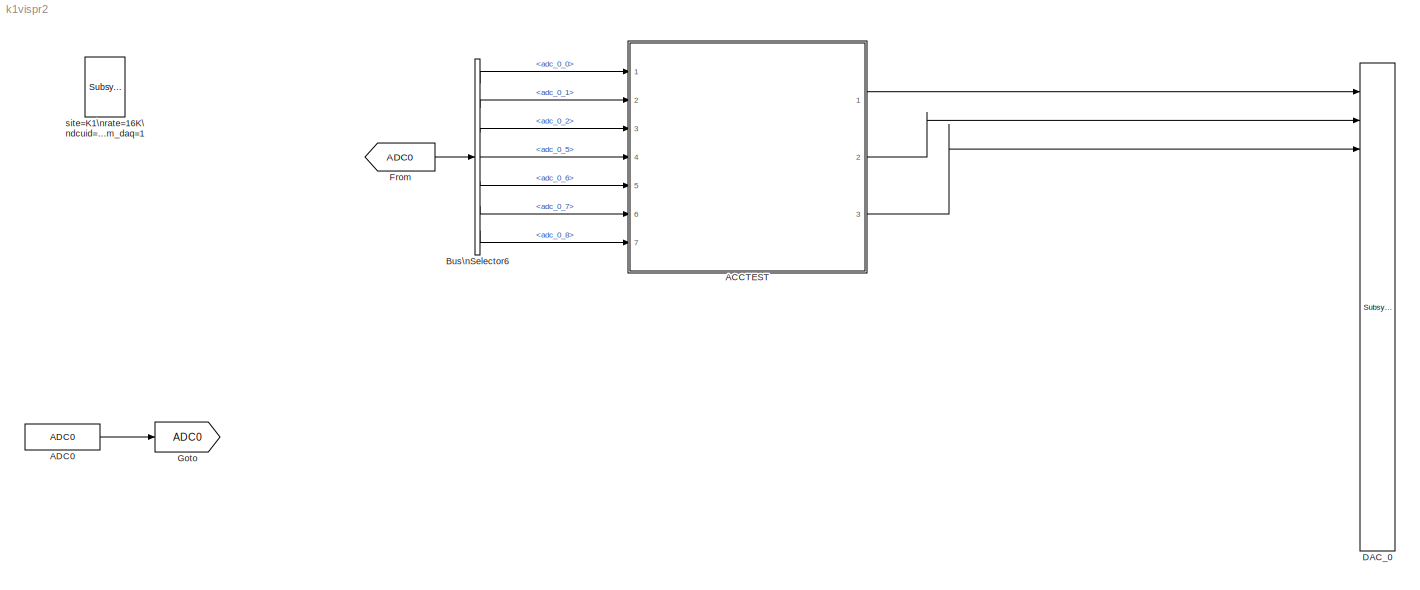
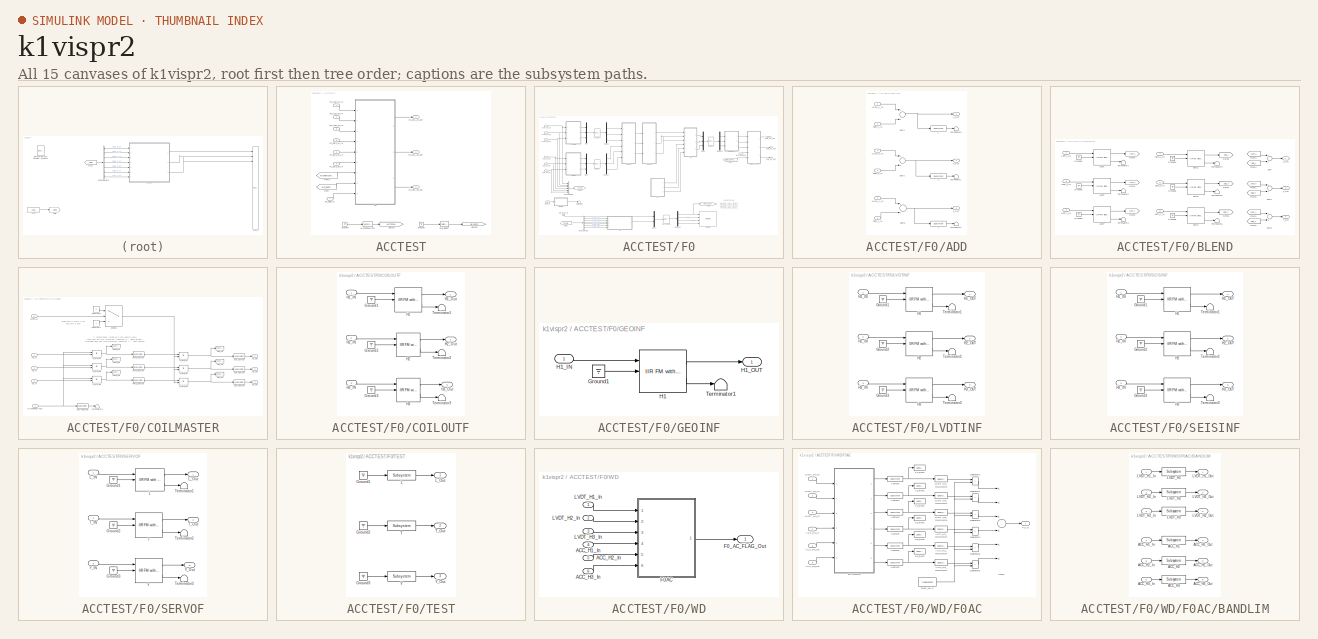
[diagram: thumbnail index - all 15 canvases of the model, root first then tree order]
MODEL k1vispr2
KIND model
BLOCK [SubSystem] ACCTEST
  Ports = [7, 3]
  RequestExecContextInheritance = off
  SID = 2594
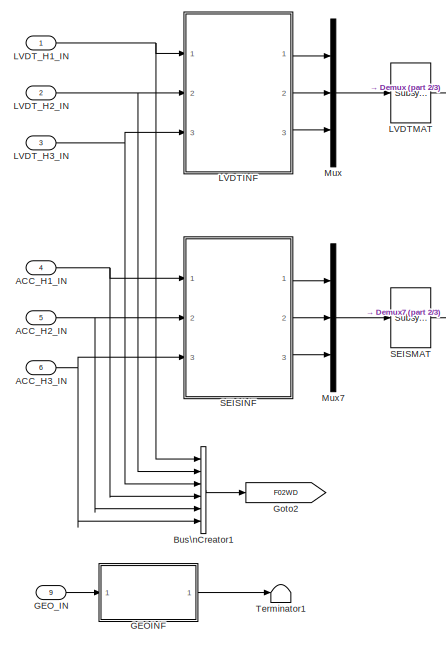
[diagram: ACCTEST/F0 - part 1/3, left side, full height]
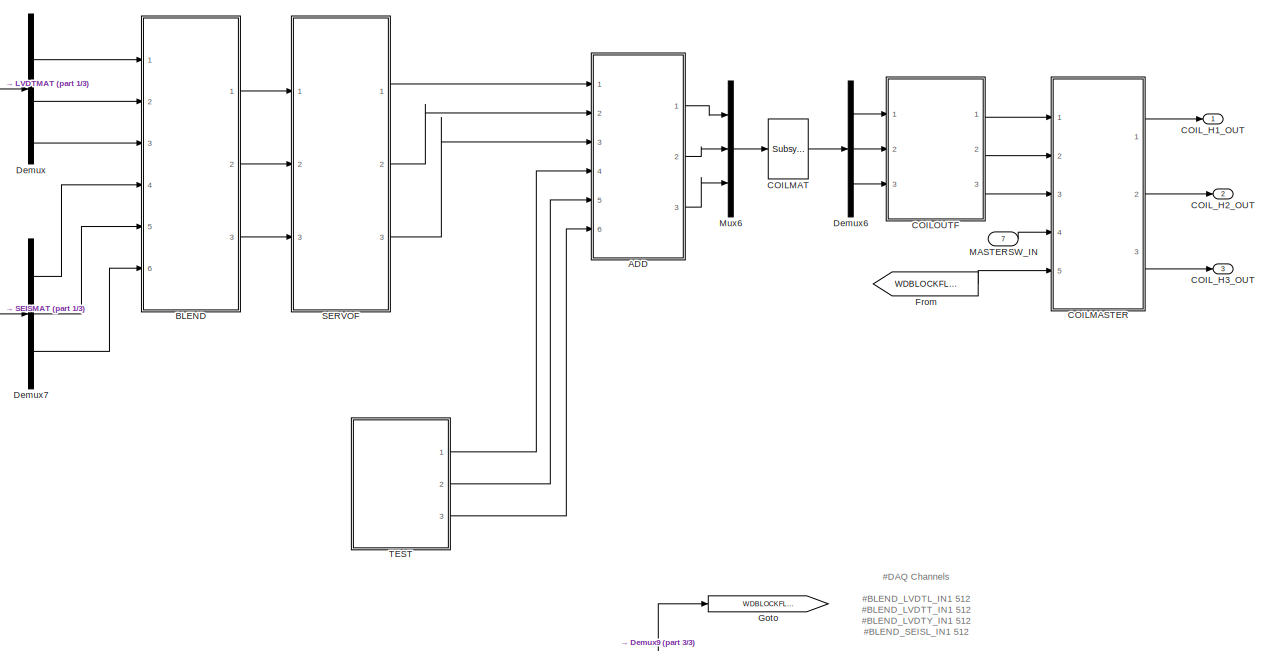
[diagram: ACCTEST/F0 - part 2/3, most of the canvas]
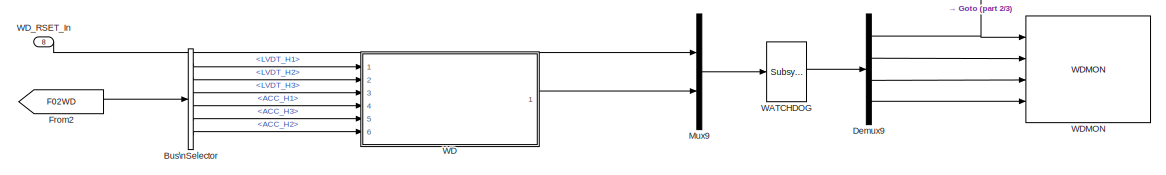
[diagram: ACCTEST/F0 - part 3/3, bottom center region]
BLOCK [SubSystem] ACCTEST/F0
  Ports = [9, 3]
  RequestExecContextInheritance = off
  SID = 2611
BLOCK [Inport] ACCTEST/F0/ACC_H1_IN
  IconDisplay = Port number
  Port = 4
  SID = 2616
BLOCK [Inport] ACCTEST/F0/ACC_H2_IN
  IconDisplay = Port number
  Port = 5
  SID = 2893
BLOCK [Inport] ACCTEST/F0/ACC_H3_IN
  IconDisplay = Port number
  Port = 6
  SID = 2894
BLOCK [SubSystem] ACCTEST/F0/ADD
  Ports = [6, 3]
  RequestExecContextInheritance = off
  SID = 3047
BLOCK [Reference] ACCTEST/F0/ADD/L  REF=cdsFilt/Subsystem
  AttributesFormatString = %<Tag>
  Description = Purpose:                                                                                                                                                                                                                                  \nStandard CDS IIR filter module.                                                                                                                                     ...<+1302ch>  <repeated x12 — deduplicated; at blocks: L, T, Y, ACC_H1, ACC_H2, ACC_H3, LVDT_H1, LVDT_H2, LVDT_H3>
  Ports = [1, 1]
  SID = 4858
  SourceBlock = cdsFilt/Subsystem
  SourceType = SubSystem
  Tag = cdsFilt
BLOCK [Inport] ACCTEST/F0/ADD/LOCAL_L_IN
  IconDisplay = Port number
  SID = 3048
BLOCK [Inport] ACCTEST/F0/ADD/LOCAL_T_IN
  IconDisplay = Port number
  Port = 2
  SID = 3049
BLOCK [Inport] ACCTEST/F0/ADD/LOCAL_Y_IN
  IconDisplay = Port number
  Port = 3
  SID = 3050
BLOCK [Outport] ACCTEST/F0/ADD/L_OUT
  IconDisplay = Port number
  SID = 3060
BLOCK [Sum] ACCTEST/F0/ADD/Sum1
  InputSameDT = off
  OutDataTypeStr = Inherit: Inherit via internal rule
  Ports = [2, 1]
  SID = 3064
  SaturateOnIntegerOverflow = off
BLOCK [Sum] ACCTEST/F0/ADD/Sum2
  InputSameDT = off
  OutDataTypeStr = Inherit: Inherit via internal rule
  Ports = [2, 1]
  SID = 3065
  SaturateOnIntegerOverflow = off
BLOCK [Sum] ACCTEST/F0/ADD/Sum3
  InputSameDT = off
  OutDataTypeStr = Inherit: Inherit via internal rule
  Ports = [2, 1]
  SID = 3066
  SaturateOnIntegerOverflow = off
BLOCK [Reference] ACCTEST/F0/ADD/T  REF=cdsFilt/Subsystem
  AttributesFormatString = %<Tag>
  Ports = [1, 1]
  SID = 4683
  SourceBlock = cdsFilt/Subsystem
  SourceType = SubSystem
  Tag = cdsFilt
BLOCK [Inport] ACCTEST/F0/ADD/TEST_L_IN
  IconDisplay = Port number
  Port = 4
  SID = 4678
BLOCK [Inport] ACCTEST/F0/ADD/TEST_T_IN
  IconDisplay = Port number
  Port = 5
  SID = 4679
BLOCK [Inport] ACCTEST/F0/ADD/TEST_Y_IN
  IconDisplay = Port number
  Port = 6
  SID = 4680
BLOCK [Outport] ACCTEST/F0/ADD/T_OUT
  IconDisplay = Port number
  Port = 2
  SID = 3061
BLOCK [Terminator] ACCTEST/F0/ADD/Terminator1
  SID = 4684
BLOCK [Terminator] ACCTEST/F0/ADD/Terminator2
  SID = 4686
BLOCK [Terminator] ACCTEST/F0/ADD/Terminator5
  SID = 4682
BLOCK [Reference] ACCTEST/F0/ADD/Y  REF=cdsFilt/Subsystem
  AttributesFormatString = %<Tag>
  Ports = [1, 1]
  SID = 4685
  SourceBlock = cdsFilt/Subsystem
  SourceType = SubSystem
  Tag = cdsFilt
BLOCK [Outport] ACCTEST/F0/ADD/Y_OUT
  IconDisplay = Port number
  Port = 3
  SID = 3062
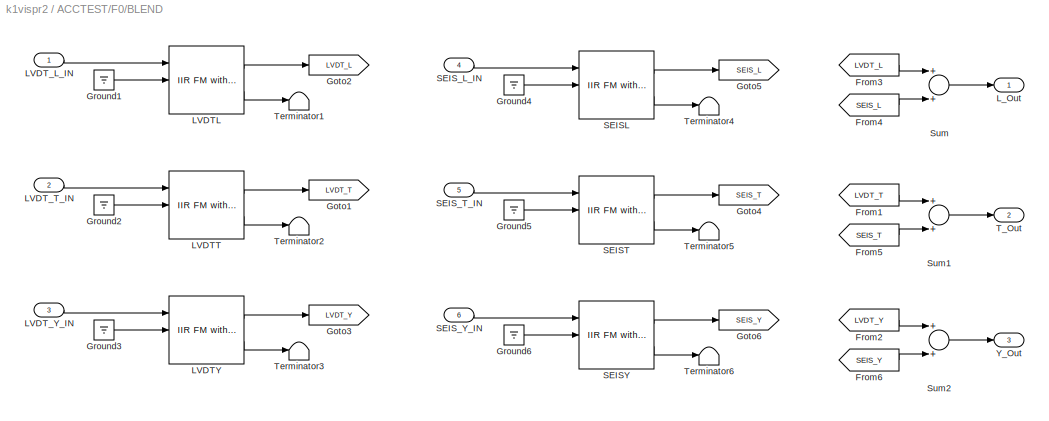
BLOCK [SubSystem] ACCTEST/F0/BLEND
  Ports = [6, 3]
  RequestExecContextInheritance = off
  SID = 2930
BLOCK [From] ACCTEST/F0/BLEND/From1
  CloseFcn = tagdialog Close
  GotoTag = LVDT_T
  SID = 2974
BLOCK [From] ACCTEST/F0/BLEND/From2
  CloseFcn = tagdialog Close
  GotoTag = LVDT_Y
  SID = 2975
BLOCK [From] ACCTEST/F0/BLEND/From3
  CloseFcn = tagdialog Close
  GotoTag = LVDT_L
  SID = 2973
BLOCK [From] ACCTEST/F0/BLEND/From4
  CloseFcn = tagdialog Close
  GotoTag = SEIS_L
  SID = 2976
BLOCK [From] ACCTEST/F0/BLEND/From5
  CloseFcn = tagdialog Close
  GotoTag = SEIS_T
  SID = 2977
BLOCK [From] ACCTEST/F0/BLEND/From6
  CloseFcn = tagdialog Close
  GotoTag = SEIS_Y
  SID = 2978
BLOCK [Goto] ACCTEST/F0/BLEND/Goto1
  GotoTag = LVDT_T
  SID = 2956
BLOCK [Goto] ACCTEST/F0/BLEND/Goto2
  GotoTag = LVDT_L
  SID = 2955
BLOCK [Goto] ACCTEST/F0/BLEND/Goto3
  GotoTag = LVDT_Y
  SID = 2957
BLOCK [Goto] ACCTEST/F0/BLEND/Goto4
  GotoTag = SEIS_T
  SID = 2961
BLOCK [Goto] ACCTEST/F0/BLEND/Goto5
  GotoTag = SEIS_L
  SID = 2962
BLOCK [Goto] ACCTEST/F0/BLEND/Goto6
  GotoTag = SEIS_Y
  SID = 2963
BLOCK [Ground] ACCTEST/F0/BLEND/Ground1
  SID = 2934
BLOCK [Ground] ACCTEST/F0/BLEND/Ground2
  SID = 2947
BLOCK [Ground] ACCTEST/F0/BLEND/Ground3
  SID = 2952
BLOCK [Ground] ACCTEST/F0/BLEND/Ground4
  SID = 2964
BLOCK [Ground] ACCTEST/F0/BLEND/Ground5
  SID = 2965
BLOCK [Ground] ACCTEST/F0/BLEND/Ground6
  SID = 2966
BLOCK [Reference] ACCTEST/F0/BLEND/LVDTL  REF=cdsFiltCtrl/IIR FM with control
  AttributesFormatString = %<Tag>
  Description = cdsFiltCntrl is the standard IIR filter module (exactly the same as cdsFilt) but with added control data output 'Ctrl'. Filter module digital signal output appears on the first output, which is called 'Val'. 'Ctrl' output has a bit pattern encoding the state of filter's on/off switches (FM1 through FM10). The bit values are:\n                                                                        ...<+4621ch>  <repeated x19 — deduplicated; at blocks: LVDTL, LVDTT, LVDTY, SEISL, SEIST, SEISY, H1, H2, H3, L, T, Y>
  Ports = [3, 2]
  SID = 2937
  SourceBlock = cdsFiltCtrl/IIR FM with control
  SourceType = SubSystem
  Tag = cdsFiltCtrl
BLOCK [Reference] ACCTEST/F0/BLEND/LVDTT  REF=cdsFiltCtrl/IIR FM with control
  AttributesFormatString = %<Tag>
  Ports = [3, 2]
  SID = 2948
  SourceBlock = cdsFiltCtrl/IIR FM with control
  SourceType = SubSystem
  Tag = cdsFiltCtrl
BLOCK [Reference] ACCTEST/F0/BLEND/LVDTY  REF=cdsFiltCtrl/IIR FM with control
  AttributesFormatString = %<Tag>
  Ports = [3, 2]
  SID = 2953
  SourceBlock = cdsFiltCtrl/IIR FM with control
  SourceType = SubSystem
  Tag = cdsFiltCtrl
BLOCK [Inport] ACCTEST/F0/BLEND/LVDT_L_IN
  IconDisplay = Port number
  SID = 2931
BLOCK [Inport] ACCTEST/F0/BLEND/LVDT_T_IN
  IconDisplay = Port number
  Port = 2
  SID = 2946
BLOCK [Inport] ACCTEST/F0/BLEND/LVDT_Y_IN
  IconDisplay = Port number
  Port = 3
  SID = 2951
BLOCK [Outport] ACCTEST/F0/BLEND/L_Out
  IconDisplay = Port number
  SID = 2982
BLOCK [Reference] ACCTEST/F0/BLEND/SEISL  REF=cdsFiltCtrl/IIR FM with control
  AttributesFormatString = %<Tag>
  Ports = [3, 2]
  SID = 2967
  SourceBlock = cdsFiltCtrl/IIR FM with control
  SourceType = SubSystem
  Tag = cdsFiltCtrl
BLOCK [Reference] ACCTEST/F0/BLEND/SEIST  REF=cdsFiltCtrl/IIR FM with control
  AttributesFormatString = %<Tag>
  Ports = [3, 2]
  SID = 2968
  SourceBlock = cdsFiltCtrl/IIR FM with control
  SourceType = SubSystem
  Tag = cdsFiltCtrl
BLOCK [Reference] ACCTEST/F0/BLEND/SEISY  REF=cdsFiltCtrl/IIR FM with control
  AttributesFormatString = %<Tag>
  Ports = [3, 2]
  SID = 2969
  SourceBlock = cdsFiltCtrl/IIR FM with control
  SourceType = SubSystem
  Tag = cdsFiltCtrl
BLOCK [Inport] ACCTEST/F0/BLEND/SEIS_L_IN
  IconDisplay = Port number
  Port = 4
  SID = 2958
BLOCK [Inport] ACCTEST/F0/BLEND/SEIS_T_IN
  IconDisplay = Port number
  Port = 5
  SID = 2959
BLOCK [Inport] ACCTEST/F0/BLEND/SEIS_Y_IN
  IconDisplay = Port number
  Port = 6
  SID = 2960
BLOCK [Sum] ACCTEST/F0/BLEND/Sum
  InputSameDT = off
  OutDataTypeStr = Inherit: Inherit via internal rule
  Ports = [2, 1]
  SID = 2979
  SaturateOnIntegerOverflow = off
BLOCK [Sum] ACCTEST/F0/BLEND/Sum1
  InputSameDT = off
  OutDataTypeStr = Inherit: Inherit via internal rule
  Ports = [2, 1]
  SID = 2980
  SaturateOnIntegerOverflow = off
BLOCK [Sum] ACCTEST/F0/BLEND/Sum2
  InputSameDT = off
  OutDataTypeStr = Inherit: Inherit via internal rule
  Ports = [2, 1]
  SID = 2981
  SaturateOnIntegerOverflow = off
BLOCK [Outport] ACCTEST/F0/BLEND/T_Out
  IconDisplay = Port number
  Port = 2
  SID = 2983
BLOCK [Terminator] ACCTEST/F0/BLEND/Terminator1
  SID = 2940
BLOCK [Terminator] ACCTEST/F0/BLEND/Terminator2
  SID = 2949
BLOCK [Terminator] ACCTEST/F0/BLEND/Terminator3
  SID = 2954
BLOCK [Terminator] ACCTEST/F0/BLEND/Terminator4
  SID = 2970
BLOCK [Terminator] ACCTEST/F0/BLEND/Terminator5
  SID = 2971
BLOCK [Terminator] ACCTEST/F0/BLEND/Terminator6
  SID = 2972
BLOCK [Outport] ACCTEST/F0/BLEND/Y_Out
  IconDisplay = Port number
  Port = 3
  SID = 2984
BLOCK [BusCreator] ACCTEST/F0/Bus\nCreator1
  DisplayOption = bar
  Inputs = 'LVDT_H1','LVDT_H2','LVDT_H3','ACC_H1','ACC_H2','ACC_H3'
  Ports = [6, 1]
  SID = 4972
BLOCK [BusSelector] ACCTEST/F0/Bus\nSelector
  OutputSignals = LVDT_H1,LVDT_H2,LVDT_H3,ACC_H1,ACC_H3,ACC_H2
  Ports = [1, 6]
  SID = 4964
BLOCK [SubSystem] ACCTEST/F0/COILMASTER
  Ports = [5, 3]
  RequestExecContextInheritance = off
  SID = 4867
BLOCK [Switch] ACCTEST/F0/COILMASTER/Choice1
  Criteria = u2 ~= 0
  InputSameDT = off
  SID = 4983
  SaturateOnIntegerOverflow = off
  Threshold = 0.5
BLOCK [Constant] ACCTEST/F0/COILMASTER/Constant0
  SID = 4984
  Value = 0
BLOCK [Constant] ACCTEST/F0/COILMASTER/Constant1
  SID = 4985
BLOCK [Inport] ACCTEST/F0/COILMASTER/H1_In
  IconDisplay = Port number
  SID = 4975
BLOCK [Outport] ACCTEST/F0/COILMASTER/H1_Out
  IconDisplay = Port number
  SID = 5024
BLOCK [Inport] ACCTEST/F0/COILMASTER/H2_In
  IconDisplay = Port number
  Port = 2
  SID = 4976
BLOCK [Outport] ACCTEST/F0/COILMASTER/H2_Out
  IconDisplay = Port number
  Port = 2
  SID = 5025
BLOCK [Inport] ACCTEST/F0/COILMASTER/H3_In
  IconDisplay = Port number
  Port = 3
  SID = 4977
BLOCK [Outport] ACCTEST/F0/COILMASTER/H3_Out
  IconDisplay = Port number
  Port = 3
  SID = 5026
BLOCK [Inport] ACCTEST/F0/COILMASTER/MASTERSWITCH
  IconDisplay = Port number
  Port = 4
  SID = 4981
BLOCK [Reference] ACCTEST/F0/COILMASTER/OUT_H1  REF=cdsTP/Subsystem
  AttributesFormatString = %<Tag>
  Ports = [1]
  SID = 4992
  SourceBlock = cdsTP/Subsystem
  SourceType = SubSystem
  Tag = Test Point
BLOCK [Reference] ACCTEST/F0/COILMASTER/OUT_H1MON  REF=cdsEpicsOut/Subsystem
  AttributesFormatString = %<Tag>
  Description = Purpose:                                          \nOutput a FE signal to an EPICS channel.           \n                                                  \nOperation:                                        \nTakes input value and passes it to EPICS record.  \n                                                  \nUsage:                                            \nName the part with the desired EPICS...<+14ch>  <repeated x13 — deduplicated; at blocks: OUT_H1MON, OUT_H2MON, OUT_H3MON, PWD_H1MON, PWD_H2MON, PWD_H3MON, SWITCHMON, ACC_H1_RMSMON, ACC_H2_RMSMON, ACC_H3_RMSMON, LVDT_H1_RMSMON, LVDT_H2_RMSMON, LVDT_H3_RMSMON>
  Ports = [1, 1]
  SID = 4993
  SourceBlock = cdsEpicsOut/Subsystem
  SourceType = SubSystem
  Tag = cdsEpicsOutput
BLOCK [Reference] ACCTEST/F0/COILMASTER/OUT_H2  REF=cdsTP/Subsystem
  AttributesFormatString = %<Tag>
  Ports = [1]
  SID = 4994
  SourceBlock = cdsTP/Subsystem
  SourceType = SubSystem
  Tag = Test Point
BLOCK [Reference] ACCTEST/F0/COILMASTER/OUT_H2MON  REF=cdsEpicsOut/Subsystem
  AttributesFormatString = %<Tag>
  Ports = [1, 1]
  SID = 4995
  SourceBlock = cdsEpicsOut/Subsystem
  SourceType = SubSystem
  Tag = cdsEpicsOutput
BLOCK [Reference] ACCTEST/F0/COILMASTER/OUT_H3  REF=cdsTP/Subsystem
  AttributesFormatString = %<Tag>
  Ports = [1]
  SID = 4996
  SourceBlock = cdsTP/Subsystem
  SourceType = SubSystem
  Tag = Test Point
BLOCK [Reference] ACCTEST/F0/COILMASTER/OUT_H3MON  REF=cdsEpicsOut/Subsystem
  AttributesFormatString = %<Tag>
  Ports = [1, 1]
  SID = 4997
  SourceBlock = cdsEpicsOut/Subsystem
  SourceType = SubSystem
  Tag = cdsEpicsOutput
BLOCK [Reference] ACCTEST/F0/COILMASTER/PWD_H1  REF=cdsTP/Subsystem
  AttributesFormatString = %<Tag>
  Ports = [1]
  SID = 5004
  SourceBlock = cdsTP/Subsystem
  SourceType = SubSystem
  Tag = Test Point
BLOCK [Reference] ACCTEST/F0/COILMASTER/PWD_H1MON  REF=cdsEpicsOut/Subsystem
  AttributesFormatString = %<Tag>
  Ports = [1, 1]
  SID = 5005
  SourceBlock = cdsEpicsOut/Subsystem
  SourceType = SubSystem
  Tag = cdsEpicsOutput
BLOCK [Reference] ACCTEST/F0/COILMASTER/PWD_H2  REF=cdsTP/Subsystem
  AttributesFormatString = %<Tag>
  Ports = [1]
  SID = 5006
  SourceBlock = cdsTP/Subsystem
  SourceType = SubSystem
  Tag = Test Point
BLOCK [Reference] ACCTEST/F0/COILMASTER/PWD_H2MON  REF=cdsEpicsOut/Subsystem
  AttributesFormatString = %<Tag>
  Ports = [1, 1]
  SID = 5007
  SourceBlock = cdsEpicsOut/Subsystem
  SourceType = SubSystem
  Tag = cdsEpicsOutput
BLOCK [Reference] ACCTEST/F0/COILMASTER/PWD_H3  REF=cdsTP/Subsystem
  AttributesFormatString = %<Tag>
  Ports = [1]
  SID = 5008
  SourceBlock = cdsTP/Subsystem
  SourceType = SubSystem
  Tag = Test Point
BLOCK [Reference] ACCTEST/F0/COILMASTER/PWD_H3MON  REF=cdsEpicsOut/Subsystem
  AttributesFormatString = %<Tag>
  Ports = [1, 1]
  SID = 5009
  SourceBlock = cdsEpicsOut/Subsystem
  SourceType = SubSystem
  Tag = cdsEpicsOutput
BLOCK [Product] ACCTEST/F0/COILMASTER/P_MS_H1
  InputSameDT = off
  OutDataTypeStr = Inherit: Inherit via internal rule
  Ports = [2, 1]
  SID = 5013
  SaturateOnIntegerOverflow = off
BLOCK [Product] ACCTEST/F0/COILMASTER/P_MS_H2
  InputSameDT = off
  OutDataTypeStr = Inherit: Inherit via internal rule
  Ports = [2, 1]
  SID = 5014
  SaturateOnIntegerOverflow = off
BLOCK [Product] ACCTEST/F0/COILMASTER/P_MS_H3
  InputSameDT = off
  OutDataTypeStr = Inherit: Inherit via internal rule
  Ports = [2, 1]
  SID = 5015
  SaturateOnIntegerOverflow = off
BLOCK [Product] ACCTEST/F0/COILMASTER/P_WD_H1
  InputSameDT = off
  OutDataTypeStr = Inherit: Inherit via internal rule
  Ports = [2, 1]
  SID = 5019
  SaturateOnIntegerOverflow = off
BLOCK [Product] ACCTEST/F0/COILMASTER/P_WD_H2
  InputSameDT = off
  OutDataTypeStr = Inherit: Inherit via internal rule
  Ports = [2, 1]
  SID = 5020
  SaturateOnIntegerOverflow = off
BLOCK [Product] ACCTEST/F0/COILMASTER/P_WD_H3
  InputSameDT = off
  OutDataTypeStr = Inherit: Inherit via internal rule
  Ports = [2, 1]
  SID = 5021
  SaturateOnIntegerOverflow = off
BLOCK [Reference] ACCTEST/F0/COILMASTER/SWITCHMON  REF=cdsEpicsOut/Subsystem
  AttributesFormatString = %<Tag>
  Ports = [1, 1]
  SID = 5022
  SourceBlock = cdsEpicsOut/Subsystem
  SourceType = SubSystem
  Tag = cdsEpicsOutput
BLOCK [Terminator] ACCTEST/F0/COILMASTER/Terminator2
  SID = 5023
BLOCK [Inport] ACCTEST/F0/COILMASTER/WDFLAG
  IconDisplay = Port number
  Port = 5
  SID = 4982
BLOCK [Reference] ACCTEST/F0/COILMAT  REF=cdsMuxMatrix/Subsystem
  AttributesFormatString = %<Tag>
  Description = ADL=SUS_INMATRIX.adl                                                                \nSCRIPT=generate_KisselButton.py 4 5 #CHANNEL# > #TARGET_DIR#/#FULL_PART_NAME#_KB.adl
  Ports = [1, 1]
  SID = 2715
  SourceBlock = cdsMuxMatrix/Subsystem
  SourceType = SubSystem
  Tag = cdsMuxMatrix
BLOCK [SubSystem] ACCTEST/F0/COILOUTF
  Ports = [3, 3]
  RequestExecContextInheritance = off
  SID = 3107
BLOCK [Ground] ACCTEST/F0/COILOUTF/Ground1
  SID = 3111
BLOCK [Ground] ACCTEST/F0/COILOUTF/Ground2
  SID = 3112
BLOCK [Ground] ACCTEST/F0/COILOUTF/Ground3
  SID = 3113
BLOCK [Reference] ACCTEST/F0/COILOUTF/H1  REF=cdsFiltCtrl/IIR FM with control
  AttributesFormatString = %<Tag>
  Ports = [3, 2]
  SID = 4859
  SourceBlock = cdsFiltCtrl/IIR FM with control
  SourceType = SubSystem
  Tag = cdsFiltCtrl
BLOCK [Inport] ACCTEST/F0/COILOUTF/H1_IN
  IconDisplay = Port number
  SID = 3108
BLOCK [Outport] ACCTEST/F0/COILOUTF/H1_Out
  IconDisplay = Port number
  SID = 3120
BLOCK [Reference] ACCTEST/F0/COILOUTF/H2  REF=cdsFiltCtrl/IIR FM with control
  AttributesFormatString = %<Tag>
  Ports = [3, 2]
  SID = 4860
  SourceBlock = cdsFiltCtrl/IIR FM with control
  SourceType = SubSystem
  Tag = cdsFiltCtrl
BLOCK [Inport] ACCTEST/F0/COILOUTF/H2_IN
  IconDisplay = Port number
  Port = 2
  SID = 3109
BLOCK [Outport] ACCTEST/F0/COILOUTF/H2_Out
  IconDisplay = Port number
  Port = 2
  SID = 3121
BLOCK [Reference] ACCTEST/F0/COILOUTF/H3  REF=cdsFiltCtrl/IIR FM with control
  AttributesFormatString = %<Tag>
  Ports = [3, 2]
  SID = 4861
  SourceBlock = cdsFiltCtrl/IIR FM with control
  SourceType = SubSystem
  Tag = cdsFiltCtrl
BLOCK [Inport] ACCTEST/F0/COILOUTF/H3_IN
  IconDisplay = Port number
  Port = 3
  SID = 3110
BLOCK [Outport] ACCTEST/F0/COILOUTF/H3_Out
  IconDisplay = Port number
  Port = 3
  SID = 3122
BLOCK [Terminator] ACCTEST/F0/COILOUTF/Terminator1
  SID = 3116
BLOCK [Terminator] ACCTEST/F0/COILOUTF/Terminator2
  SID = 3117
BLOCK [Terminator] ACCTEST/F0/COILOUTF/Terminator3
  SID = 3118
BLOCK [Outport] ACCTEST/F0/COIL_H1_OUT
  IconDisplay = Port number
  SID = 3193
BLOCK [Outport] ACCTEST/F0/COIL_H2_OUT
  IconDisplay = Port number
  Port = 2
  SID = 3194
BLOCK [Outport] ACCTEST/F0/COIL_H3_OUT
  IconDisplay = Port number
  Port = 3
  SID = 3195
BLOCK [Demux] ACCTEST/F0/Demux
  DisplayOption = bar
  Outputs = 3
  Ports = [1, 3]
  SID = 2642
BLOCK [Demux] ACCTEST/F0/Demux6
  DisplayOption = bar
  Outputs = 3
  Ports = [1, 3]
  SID = 2648
BLOCK [Demux] ACCTEST/F0/Demux7
  DisplayOption = bar
  Outputs = 3
  Ports = [1, 3]
  SID = 2913
BLOCK [Demux] ACCTEST/F0/Demux9
  DisplayOption = bar
  Ports = [1, 4]
  SID = 4965
BLOCK [From] ACCTEST/F0/From
  GotoTag = WDBLOCKFLAG
  SID = 5032
BLOCK [From] ACCTEST/F0/From2
  CloseFcn = tagdialog Close
  GotoTag = F02WD
  SID = 4966
BLOCK [SubSystem] ACCTEST/F0/GEOINF
  Ports = [1, 1]
  RequestExecContextInheritance = off
  SID = 5049
BLOCK [Ground] ACCTEST/F0/GEOINF/Ground1
  SID = 5053
BLOCK [Reference] ACCTEST/F0/GEOINF/H1  REF=cdsFiltCtrl/IIR FM with control
  AttributesFormatString = %<Tag>
  Ports = [3, 2]
  SID = 5056
  SourceBlock = cdsFiltCtrl/IIR FM with control
  SourceType = SubSystem
  Tag = cdsFiltCtrl
BLOCK [Inport] ACCTEST/F0/GEOINF/H1_IN
  IconDisplay = Port number
  SID = 5050
BLOCK [Outport] ACCTEST/F0/GEOINF/H1_OUT
  IconDisplay = Port number
  SID = 5062
BLOCK [Terminator] ACCTEST/F0/GEOINF/Terminator1
  SID = 5059
BLOCK [Inport] ACCTEST/F0/GEO_IN
  IconDisplay = Port number
  Port = 9
  SID = 5043
BLOCK [Goto] ACCTEST/F0/Goto
  GotoTag = WDBLOCKFLAG
  SID = 4967
BLOCK [Goto] ACCTEST/F0/Goto2
  GotoTag = F02WD
  SID = 4973
BLOCK [SubSystem] ACCTEST/F0/LVDTINF
  Ports = [3, 3]
  RequestExecContextInheritance = off
  SID = 2856
BLOCK [Ground] ACCTEST/F0/LVDTINF/Ground1
  SID = 2863
BLOCK [Ground] ACCTEST/F0/LVDTINF/Ground2
  SID = 2880
BLOCK [Ground] ACCTEST/F0/LVDTINF/Ground3
  SID = 2885
BLOCK [Reference] ACCTEST/F0/LVDTINF/H1  REF=cdsFiltCtrl/IIR FM with control
  AttributesFormatString = %<Tag>
  Ports = [3, 2]
  SID = 2859
  SourceBlock = cdsFiltCtrl/IIR FM with control
  SourceType = SubSystem
  Tag = cdsFiltCtrl
BLOCK [Inport] ACCTEST/F0/LVDTINF/H1_IN
  IconDisplay = Port number
  SID = 2857
BLOCK [Outport] ACCTEST/F0/LVDTINF/H1_OUT
  IconDisplay = Port number
  SID = 2858
BLOCK [Reference] ACCTEST/F0/LVDTINF/H2  REF=cdsFiltCtrl/IIR FM with control
  AttributesFormatString = %<Tag>
  Ports = [3, 2]
  SID = 2881
  SourceBlock = cdsFiltCtrl/IIR FM with control
  SourceType = SubSystem
  Tag = cdsFiltCtrl
BLOCK [Inport] ACCTEST/F0/LVDTINF/H2_IN
  IconDisplay = Port number
  Port = 2
  SID = 2879
BLOCK [Outport] ACCTEST/F0/LVDTINF/H2_OUT
  IconDisplay = Port number
  Port = 2
  SID = 2883
BLOCK [Reference] ACCTEST/F0/LVDTINF/H3  REF=cdsFiltCtrl/IIR FM with control
  AttributesFormatString = %<Tag>
  Ports = [3, 2]
  SID = 2886
  SourceBlock = cdsFiltCtrl/IIR FM with control
  SourceType = SubSystem
  Tag = cdsFiltCtrl
BLOCK [Inport] ACCTEST/F0/LVDTINF/H3_IN
  IconDisplay = Port number
  Port = 3
  SID = 2884
BLOCK [Outport] ACCTEST/F0/LVDTINF/H3_OUT
  IconDisplay = Port number
  Port = 3
  SID = 2888
BLOCK [Terminator] ACCTEST/F0/LVDTINF/Terminator1
  SID = 2878
BLOCK [Terminator] ACCTEST/F0/LVDTINF/Terminator2
  SID = 2882
BLOCK [Terminator] ACCTEST/F0/LVDTINF/Terminator3
  SID = 2887
BLOCK [Reference] ACCTEST/F0/LVDTMAT  REF=cdsMuxMatrix/Subsystem
  AttributesFormatString = %<Tag>
  Description = ADL=SUS_INMATRIX.adl                                                                \nSCRIPT=generate_KisselButton.py 4 5 #CHANNEL# > #TARGET_DIR#/#FULL_PART_NAME#_KB.adl
  Ports = [1, 1]
  SID = 2679
  SourceBlock = cdsMuxMatrix/Subsystem
  SourceType = SubSystem
  Tag = cdsMuxMatrix
BLOCK [Inport] ACCTEST/F0/LVDT_H1_IN
  IconDisplay = Port number
  SID = 2612
BLOCK [Inport] ACCTEST/F0/LVDT_H2_IN
  IconDisplay = Port number
  Port = 2
  SID = 2613
BLOCK [Inport] ACCTEST/F0/LVDT_H3_IN
  IconDisplay = Port number
  Port = 3
  SID = 2614
BLOCK [Inport] ACCTEST/F0/MASTERSW_IN
  IconDisplay = Port number
  Port = 7
  SID = 4953
BLOCK [Mux] ACCTEST/F0/Mux
  DisplayOption = bar
  Inputs = 3
  Ports = [3, 1]
  SID = 2707
BLOCK [Mux] ACCTEST/F0/Mux6
  DisplayOption = bar
  Inputs = 3
  Ports = [3, 1]
  SID = 2713
BLOCK [Mux] ACCTEST/F0/Mux7
  DisplayOption = bar
  Inputs = 3
  Ports = [3, 1]
  SID = 2912
BLOCK [Mux] ACCTEST/F0/Mux9
  DisplayOption = bar
  Inputs = 2
  Ports = [2, 1]
  SID = 4968
BLOCK [SubSystem] ACCTEST/F0/SEISINF
  Ports = [3, 3]
  RequestExecContextInheritance = off
  SID = 2914
BLOCK [Ground] ACCTEST/F0/SEISINF/Ground1
  SID = 2918
BLOCK [Ground] ACCTEST/F0/SEISINF/Ground2
  SID = 2919
BLOCK [Ground] ACCTEST/F0/SEISINF/Ground3
  SID = 2920
BLOCK [Reference] ACCTEST/F0/SEISINF/H1  REF=cdsFiltCtrl/IIR FM with control
  AttributesFormatString = %<Tag>
  Ports = [3, 2]
  SID = 2921
  SourceBlock = cdsFiltCtrl/IIR FM with control
  SourceType = SubSystem
  Tag = cdsFiltCtrl
BLOCK [Inport] ACCTEST/F0/SEISINF/H1_IN
  IconDisplay = Port number
  SID = 2915
BLOCK [Outport] ACCTEST/F0/SEISINF/H1_OUT
  IconDisplay = Port number
  SID = 2927
BLOCK [Reference] ACCTEST/F0/SEISINF/H2  REF=cdsFiltCtrl/IIR FM with control
  AttributesFormatString = %<Tag>
  Ports = [3, 2]
  SID = 2922
  SourceBlock = cdsFiltCtrl/IIR FM with control
  SourceType = SubSystem
  Tag = cdsFiltCtrl
BLOCK [Inport] ACCTEST/F0/SEISINF/H2_IN
  IconDisplay = Port number
  Port = 2
  SID = 2916
BLOCK [Outport] ACCTEST/F0/SEISINF/H2_OUT
  IconDisplay = Port number
  Port = 2
  SID = 2928
BLOCK [Reference] ACCTEST/F0/SEISINF/H3  REF=cdsFiltCtrl/IIR FM with control
  AttributesFormatString = %<Tag>
  Ports = [3, 2]
  SID = 2923
  SourceBlock = cdsFiltCtrl/IIR FM with control
  SourceType = SubSystem
  Tag = cdsFiltCtrl
BLOCK [Inport] ACCTEST/F0/SEISINF/H3_IN
  IconDisplay = Port number
  Port = 3
  SID = 2917
BLOCK [Outport] ACCTEST/F0/SEISINF/H3_OUT
  IconDisplay = Port number
  Port = 3
  SID = 2929
BLOCK [Terminator] ACCTEST/F0/SEISINF/Terminator1
  SID = 2924
BLOCK [Terminator] ACCTEST/F0/SEISINF/Terminator2
  SID = 2925
BLOCK [Terminator] ACCTEST/F0/SEISINF/Terminator3
  SID = 2926
BLOCK [Reference] ACCTEST/F0/SEISMAT  REF=cdsMuxMatrix/Subsystem
  AttributesFormatString = %<Tag>
  Description = ADL=SUS_INMATRIX.adl                                                                \nSCRIPT=generate_KisselButton.py 4 5 #CHANNEL# > #TARGET_DIR#/#FULL_PART_NAME#_KB.adl
  Ports = [1, 1]
  SID = 2911
  SourceBlock = cdsMuxMatrix/Subsystem
  SourceType = SubSystem
  Tag = cdsMuxMatrix
BLOCK [SubSystem] ACCTEST/F0/SERVOF
  Ports = [3, 3]
  RequestExecContextInheritance = off
  SID = 2987
BLOCK [Ground] ACCTEST/F0/SERVOF/Ground1
  SID = 3006
BLOCK [Ground] ACCTEST/F0/SERVOF/Ground2
  SID = 3007
BLOCK [Ground] ACCTEST/F0/SERVOF/Ground3
  SID = 3008
BLOCK [Reference] ACCTEST/F0/SERVOF/L  REF=cdsFiltCtrl/IIR FM with control
  AttributesFormatString = %<Tag>
  Ports = [3, 2]
  SID = 4837
  SourceBlock = cdsFiltCtrl/IIR FM with control
  SourceType = SubSystem
  Tag = cdsFiltCtrl
BLOCK [Inport] ACCTEST/F0/SERVOF/L_IN
  IconDisplay = Port number
  SID = 2988
BLOCK [Outport] ACCTEST/F0/SERVOF/L_Out
  IconDisplay = Port number
  SID = 3027
BLOCK [Reference] ACCTEST/F0/SERVOF/T  REF=cdsFiltCtrl/IIR FM with control
  AttributesFormatString = %<Tag>
  Ports = [3, 2]
  SID = 4838
  SourceBlock = cdsFiltCtrl/IIR FM with control
  SourceType = SubSystem
  Tag = cdsFiltCtrl
BLOCK [Inport] ACCTEST/F0/SERVOF/T_IN
  IconDisplay = Port number
  Port = 2
  SID = 2989
BLOCK [Outport] ACCTEST/F0/SERVOF/T_Out
  IconDisplay = Port number
  Port = 2
  SID = 3028
BLOCK [Terminator] ACCTEST/F0/SERVOF/Terminator1
  SID = 3021
BLOCK [Terminator] ACCTEST/F0/SERVOF/Terminator2
  SID = 3022
BLOCK [Terminator] ACCTEST/F0/SERVOF/Terminator3
  SID = 3023
BLOCK [Reference] ACCTEST/F0/SERVOF/Y  REF=cdsFiltCtrl/IIR FM with control
  AttributesFormatString = %<Tag>
  Ports = [3, 2]
  SID = 4839
  SourceBlock = cdsFiltCtrl/IIR FM with control
  SourceType = SubSystem
  Tag = cdsFiltCtrl
BLOCK [Inport] ACCTEST/F0/SERVOF/Y_IN
  IconDisplay = Port number
  Port = 3
  SID = 2990
BLOCK [Outport] ACCTEST/F0/SERVOF/Y_Out
  IconDisplay = Port number
  Port = 3
  SID = 3029
BLOCK [SubSystem] ACCTEST/F0/TEST
  Ports = [0, 3]
  RequestExecContextInheritance = off
  SID = 3200
BLOCK [Ground] ACCTEST/F0/TEST/Ground1
  SID = 3204
BLOCK [Ground] ACCTEST/F0/TEST/Ground2
  SID = 3205
BLOCK [Ground] ACCTEST/F0/TEST/Ground3
  SID = 3206
BLOCK [Reference] ACCTEST/F0/TEST/L  REF=cdsFilt/Subsystem
  AttributesFormatString = %<Tag>
  Ports = [1, 1]
  SID = 3216
  SourceBlock = cdsFilt/Subsystem
  SourceType = SubSystem
  Tag = cdsFilt
BLOCK [Outport] ACCTEST/F0/TEST/L_Out
  IconDisplay = Port number
  SID = 3213
BLOCK [Reference] ACCTEST/F0/TEST/T  REF=cdsFilt/Subsystem
  AttributesFormatString = %<Tag>
  Ports = [1, 1]
  SID = 3217
  SourceBlock = cdsFilt/Subsystem
  SourceType = SubSystem
  Tag = cdsFilt
BLOCK [Outport] ACCTEST/F0/TEST/T_Out
  IconDisplay = Port number
  Port = 2
  SID = 3214
BLOCK [Reference] ACCTEST/F0/TEST/Y  REF=cdsFilt/Subsystem
  AttributesFormatString = %<Tag>
  Ports = [1, 1]
  SID = 3218
  SourceBlock = cdsFilt/Subsystem
  SourceType = SubSystem
  Tag = cdsFilt
BLOCK [Outport] ACCTEST/F0/TEST/Y_Out
  IconDisplay = Port number
  Port = 3
  SID = 3215
BLOCK [Terminator] ACCTEST/F0/Terminator1
  SID = 5065
BLOCK [Reference] ACCTEST/F0/WATCHDOG  REF=cdsFunctionCall/Subsystem
  AttributesFormatString = %<Tag>\\n%<Description>
  Description = inline OSEMWATCHDOG <path>
  Ports = [1, 1]
  SID = 4969
  SourceBlock = cdsFunctionCall/Subsystem
  SourceType = SubSystem
  Tag = cdsFunctionCall
BLOCK [SubSystem] ACCTEST/F0/WD
  AncestorBlock = SIXOSEM_F_STAGE_MASTER/SIXOSEM_F_STAGE_MASTER/WD
  Ports = [6, 1]
  RequestExecContextInheritance = off
  SID = 4970
BLOCK [Inport] ACCTEST/F0/WD/ACC_H1_In
  IconDisplay = Port number
  Port = 4
  SID = 4970:315
BLOCK [Inport] ACCTEST/F0/WD/ACC_H2_In
  IconDisplay = Port number
  Port = 5
  SID = 4970:316
BLOCK [Inport] ACCTEST/F0/WD/ACC_H3_In
  IconDisplay = Port number
  Port = 6
  SID = 4970:317
BLOCK [SubSystem] ACCTEST/F0/WD/F0AC
  AncestorBlock = SIXOSEM_F_WD_AC_MASTER/AC
  Ports = [6, 1]
  RequestExecContextInheritance = off
  SID = 4970:361
BLOCK [Inport] ACCTEST/F0/WD/F0AC/ACC_H1_In
  IconDisplay = Port number
  Port = 4
  SID = 4970:361:5
BLOCK [Reference] ACCTEST/F0/WD/F0AC/ACC_H1_RMSMON  REF=cdsEpicsOut/Subsystem
  AttributesFormatString = %<Tag>
  Ports = [1, 1]
  SID = 4970:361:38
  SourceBlock = cdsEpicsOut/Subsystem
  SourceType = SubSystem
  Tag = cdsEpicsOutput
BLOCK [Inport] ACCTEST/F0/WD/F0AC/ACC_H2_In1
  IconDisplay = Port number
  Port = 5
  SID = 4970:361:6
BLOCK [Reference] ACCTEST/F0/WD/F0AC/ACC_H2_RMSMON  REF=cdsEpicsOut/Subsystem
  AttributesFormatString = %<Tag>
  Ports = [1, 1]
  SID = 4970:361:48
  SourceBlock = cdsEpicsOut/Subsystem
  SourceType = SubSystem
  Tag = cdsEpicsOutput
BLOCK [Inport] ACCTEST/F0/WD/F0AC/ACC_H3_In1
  IconDisplay = Port number
  Port = 6
  SID = 4970:361:7
BLOCK [Reference] ACCTEST/F0/WD/F0AC/ACC_H3_RMSMON  REF=cdsEpicsOut/Subsystem
  AttributesFormatString = %<Tag>
  Ports = [1, 1]
  SID = 4970:361:51
  SourceBlock = cdsEpicsOut/Subsystem
  SourceType = SubSystem
  Tag = cdsEpicsOutput
BLOCK [SubSystem] ACCTEST/F0/WD/F0AC/BANDLIM
  Ports = [6, 6]
  RequestExecContextInheritance = off
  SID = 4970:361:8
BLOCK [Reference] ACCTEST/F0/WD/F0AC/BANDLIM/ACC_H1  REF=cdsFilt/Subsystem
  AttributesFormatString = %<Tag>
  Ports = [1, 1]
  SID = 4970:361:18
  SourceBlock = cdsFilt/Subsystem
  SourceType = SubSystem
  Tag = cdsFilt
BLOCK [Inport] ACCTEST/F0/WD/F0AC/BANDLIM/ACC_H1_In
  IconDisplay = Port number
  Port = 4
  SID = 4970:361:12
BLOCK [Outport] ACCTEST/F0/WD/F0AC/BANDLIM/ACC_H1_Out
  IconDisplay = Port number
  Port = 4
  SID = 4970:361:24
BLOCK [Reference] ACCTEST/F0/WD/F0AC/BANDLIM/ACC_H2  REF=cdsFilt/Subsystem
  AttributesFormatString = %<Tag>
  Ports = [1, 1]
  SID = 4970:361:19
  SourceBlock = cdsFilt/Subsystem
  SourceType = SubSystem
  Tag = cdsFilt
BLOCK [Inport] ACCTEST/F0/WD/F0AC/BANDLIM/ACC_H2_In
  IconDisplay = Port number
  Port = 5
  SID = 4970:361:13
BLOCK [Outport] ACCTEST/F0/WD/F0AC/BANDLIM/ACC_H2_Out
  IconDisplay = Port number
  Port = 5
  SID = 4970:361:25
BLOCK [Reference] ACCTEST/F0/WD/F0AC/BANDLIM/ACC_H3  REF=cdsFilt/Subsystem
  AttributesFormatString = %<Tag>
  Ports = [1, 1]
  SID = 4970:361:20
  SourceBlock = cdsFilt/Subsystem
  SourceType = SubSystem
  Tag = cdsFilt
BLOCK [Inport] ACCTEST/F0/WD/F0AC/BANDLIM/ACC_H3_In
  IconDisplay = Port number
  Port = 6
  SID = 4970:361:14
BLOCK [Outport] ACCTEST/F0/WD/F0AC/BANDLIM/ACC_H3_Out
  IconDisplay = Port number
  Port = 6
  SID = 4970:361:26
BLOCK [Reference] ACCTEST/F0/WD/F0AC/BANDLIM/LVDT_H1  REF=cdsFilt/Subsystem
  AttributesFormatString = %<Tag>
  Ports = [1, 1]
  SID = 4970:361:15
  SourceBlock = cdsFilt/Subsystem
  SourceType = SubSystem
  Tag = cdsFilt
BLOCK [Inport] ACCTEST/F0/WD/F0AC/BANDLIM/LVDT_H1_In
  IconDisplay = Port number
  SID = 4970:361:9
BLOCK [Outport] ACCTEST/F0/WD/F0AC/BANDLIM/LVDT_H1_Out
  IconDisplay = Port number
  SID = 4970:361:21
BLOCK [Reference] ACCTEST/F0/WD/F0AC/BANDLIM/LVDT_H2  REF=cdsFilt/Subsystem
  AttributesFormatString = %<Tag>
  Ports = [1, 1]
  SID = 4970:361:16
  SourceBlock = cdsFilt/Subsystem
  SourceType = SubSystem
  Tag = cdsFilt
BLOCK [Inport] ACCTEST/F0/WD/F0AC/BANDLIM/LVDT_H2_In
  IconDisplay = Port number
  Port = 2
  SID = 4970:361:10
BLOCK [Outport] ACCTEST/F0/WD/F0AC/BANDLIM/LVDT_H2_Out
  IconDisplay = Port number
  Port = 2
  SID = 4970:361:22
BLOCK [Reference] ACCTEST/F0/WD/F0AC/BANDLIM/LVDT_H3  REF=cdsFilt/Subsystem
  AttributesFormatString = %<Tag>
  Ports = [1, 1]
  SID = 4970:361:17
  SourceBlock = cdsFilt/Subsystem
  SourceType = SubSystem
  Tag = cdsFilt
BLOCK [Inport] ACCTEST/F0/WD/F0AC/BANDLIM/LVDT_H3_In
  IconDisplay = Port number
  Port = 3
  SID = 4970:361:11
BLOCK [Outport] ACCTEST/F0/WD/F0AC/BANDLIM/LVDT_H3_Out
  IconDisplay = Port number
  Port = 3
  SID = 4970:361:23
BLOCK [Outport] ACCTEST/F0/WD/F0AC/FLAG
  IconDisplay = Port number
  SID = 4970:361:53
BLOCK [Reference] ACCTEST/F0/WD/F0AC/H1RMS  REF=cdsRms/Subsystem
  AttributesFormatString = %<Tag>
  Description = Purpose:                                   \nCalculate an RMS based on the input signal.
  Ports = [1, 1]
  SID = 4970:361:36
  SourceBlock = cdsRms/Subsystem
  SourceType = SubSystem
  Tag = cdsRms
BLOCK [Reference] ACCTEST/F0/WD/F0AC/H1_RMS  REF=cdsTP/Subsystem
  AttributesFormatString = %<Tag>
  Ports = [1]
  SID = 4970:361:37
  SourceBlock = cdsTP/Subsystem
  SourceType = SubSystem
  Tag = Test Point
BLOCK [Reference] ACCTEST/F0/WD/F0AC/H2RMS  REF=cdsRms/Subsystem
  AttributesFormatString = %<Tag>
  Description = Purpose:                                   \nCalculate an RMS based on the input signal.
  Ports = [1, 1]
  SID = 4970:361:46
  SourceBlock = cdsRms/Subsystem
  SourceType = SubSystem
  Tag = cdsRms
BLOCK [Reference] ACCTEST/F0/WD/F0AC/H2_RMS  REF=cdsTP/Subsystem
  AttributesFormatString = %<Tag>
  Ports = [1]
  SID = 4970:361:47
  SourceBlock = cdsTP/Subsystem
  SourceType = SubSystem
  Tag = Test Point
BLOCK [Reference] ACCTEST/F0/WD/F0AC/H3RMS  REF=cdsRms/Subsystem
  AttributesFormatString = %<Tag>
  Description = Purpose:                                   \nCalculate an RMS based on the input signal.
  Ports = [1, 1]
  SID = 4970:361:49
  SourceBlock = cdsRms/Subsystem
  SourceType = SubSystem
  Tag = cdsRms
BLOCK [Reference] ACCTEST/F0/WD/F0AC/H3_RMS  REF=cdsTP/Subsystem
  AttributesFormatString = %<Tag>
  Ports = [1]
  SID = 4970:361:50
  SourceBlock = cdsTP/Subsystem
  SourceType = SubSystem
  Tag = Test Point
BLOCK [Inport] ACCTEST/F0/WD/F0AC/LVDT_H1_In
  IconDisplay = Port number
  SID = 4970:361:2
BLOCK [Reference] ACCTEST/F0/WD/F0AC/LVDT_H1_RMSMON  REF=cdsEpicsOut/Subsystem
  AttributesFormatString = %<Tag>
  Ports = [1, 1]
  SID = 4970:361:29
  SourceBlock = cdsEpicsOut/Subsystem
  SourceType = SubSystem
  Tag = cdsEpicsOutput
BLOCK [Inport] ACCTEST/F0/WD/F0AC/LVDT_H2_In
  IconDisplay = Port number
  Port = 2
  SID = 4970:361:3
BLOCK [Reference] ACCTEST/F0/WD/F0AC/LVDT_H2_RMSMON  REF=cdsEpicsOut/Subsystem
  AttributesFormatString = %<Tag>
  Ports = [1, 1]
  SID = 4970:361:32
  SourceBlock = cdsEpicsOut/Subsystem
  SourceType = SubSystem
  Tag = cdsEpicsOutput
BLOCK [Inport] ACCTEST/F0/WD/F0AC/LVDT_H3_In
  IconDisplay = Port number
  Port = 3
  SID = 4970:361:4
BLOCK [Reference] ACCTEST/F0/WD/F0AC/LVDT_H3_RMSMON  REF=cdsEpicsOut/Subsystem
  AttributesFormatString = %<Tag>
  Ports = [1, 1]
  SID = 4970:361:35
  SourceBlock = cdsEpicsOut/Subsystem
  SourceType = SubSystem
  Tag = cdsEpicsOutput
BLOCK [RelationalOperator] ACCTEST/F0/WD/F0AC/Operator1
  InputSameDT = off
  Operator = >
  OutDataTypeStr = boolean
  Ports = [2, 1]
  SID = 4970:361:39
BLOCK [RelationalOperator] ACCTEST/F0/WD/F0AC/Operator2
  InputSameDT = off
  Operator = >
  OutDataTypeStr = boolean
  Ports = [2, 1]
  SID = 4970:361:40
  ZeroCross = off
BLOCK [RelationalOperator] ACCTEST/F0/WD/F0AC/Operator3
  InputSameDT = off
  Operator = >
  OutDataTypeStr = boolean
  Ports = [2, 1]
  SID = 4970:361:41
BLOCK [RelationalOperator] ACCTEST/F0/WD/F0AC/Operator4
  InputSameDT = off
  Operator = >
  OutDataTypeStr = boolean
  Ports = [2, 1]
  SID = 4970:361:42
BLOCK [RelationalOperator] ACCTEST/F0/WD/F0AC/Operator5
  InputSameDT = off
  Operator = >
  OutDataTypeStr = boolean
  Ports = [2, 1]
  SID = 4970:361:43
BLOCK [RelationalOperator] ACCTEST/F0/WD/F0AC/Operator6
  InputSameDT = off
  Operator = >
  OutDataTypeStr = boolean
  Ports = [2, 1]
  SID = 4970:361:44
BLOCK [Reference] ACCTEST/F0/WD/F0AC/RMS_MAX  REF=cdsEpicsIn/Subsystem
  AttributesFormatString = %<Tag>
  Description = Purpose:                                                                              \nCreate an EPICS input channel connection to the FE realtime controls.                 \n                                                                                      \nOperation:                                                                            \nOutputs value from an EPICS ai record. Value is ...<+266ch>
  Ports = [0, 1]
  SID = 4970:361:45
  SourceBlock = cdsEpicsIn/Subsystem
  SourceType = SubSystem
  Tag = cdsEpicsIn
BLOCK [Sum] ACCTEST/F0/WD/F0AC/Sum1
  InputSameDT = off
  Inputs = ++++++
  OutDataTypeStr = Inherit: Inherit via internal rule
  Ports = [6, 1]
  SID = 4970:361:52
  SaturateOnIntegerOverflow = off
BLOCK [Reference] ACCTEST/F0/WD/F0AC/V1RMS  REF=cdsRms/Subsystem
  AttributesFormatString = %<Tag>
  Description = Purpose:                                   \nCalculate an RMS based on the input signal.
  Ports = [1, 1]
  SID = 4970:361:27
  SourceBlock = cdsRms/Subsystem
  SourceType = SubSystem
  Tag = cdsRms
BLOCK [Reference] ACCTEST/F0/WD/F0AC/V1_RMS  REF=cdsTP/Subsystem
  AttributesFormatString = %<Tag>
  Ports = [1]
  SID = 4970:361:28
  SourceBlock = cdsTP/Subsystem
  SourceType = SubSystem
  Tag = Test Point
BLOCK [Reference] ACCTEST/F0/WD/F0AC/V2RMS  REF=cdsRms/Subsystem
  AttributesFormatString = %<Tag>
  Description = Purpose:                                   \nCalculate an RMS based on the input signal.
  Ports = [1, 1]
  SID = 4970:361:30
  SourceBlock = cdsRms/Subsystem
  SourceType = SubSystem
  Tag = cdsRms
BLOCK [Reference] ACCTEST/F0/WD/F0AC/V2_RMS  REF=cdsTP/Subsystem
  AttributesFormatString = %<Tag>
  Ports = [1]
  SID = 4970:361:31
  SourceBlock = cdsTP/Subsystem
  SourceType = SubSystem
  Tag = Test Point
BLOCK [Reference] ACCTEST/F0/WD/F0AC/V3RMS  REF=cdsRms/Subsystem
  AttributesFormatString = %<Tag>
  Description = Purpose:                                   \nCalculate an RMS based on the input signal.
  Ports = [1, 1]
  SID = 4970:361:33
  SourceBlock = cdsRms/Subsystem
  SourceType = SubSystem
  Tag = cdsRms
BLOCK [Reference] ACCTEST/F0/WD/F0AC/V3_RMS  REF=cdsTP/Subsystem
  AttributesFormatString = %<Tag>
  Ports = [1]
  SID = 4970:361:34
  SourceBlock = cdsTP/Subsystem
  SourceType = SubSystem
  Tag = Test Point
BLOCK [Outport] ACCTEST/F0/WD/F0_AC_FLAG_Out
  IconDisplay = Port number
  SID = 4970:331
BLOCK [Inport] ACCTEST/F0/WD/LVDT_H1_In
  IconDisplay = Port number
  SID = 4970:312
BLOCK [Inport] ACCTEST/F0/WD/LVDT_H2_In
  IconDisplay = Port number
  Port = 2
  SID = 4970:313
BLOCK [Inport] ACCTEST/F0/WD/LVDT_H3_In
  IconDisplay = Port number
  Port = 3
  SID = 4970:314
BLOCK [Reference] ACCTEST/F0/WDMON  REF=SIXOSEM_F_STAGE_MASTER/SIXOSEM_F_STAGE_MASTER/WDMON
  Ports = [4]
  SID = 4971
  SourceBlock = SIXOSEM_F_STAGE_MASTER/SIXOSEM_F_STAGE_MASTER/WDMON
  SourceType = SubSystem
BLOCK [Inport] ACCTEST/F0/WD_RSET_In
  IconDisplay = Port number
  Port = 8
  SID = 4963
BLOCK [Outport] ACCTEST/F0_COIL_H1_OUT
  IconDisplay = Port number
  SID = 2849
BLOCK [Outport] ACCTEST/F0_COIL_H2_OUT
  IconDisplay = Port number
  Port = 2
  SID = 2850
BLOCK [Outport] ACCTEST/F0_COIL_H3_OUT
  IconDisplay = Port number
  Port = 3
  SID = 2851
BLOCK [Inport] ACCTEST/F0_GEO_IN
  IconDisplay = Port number
  Port = 7
  SID = 5034
BLOCK [Inport] ACCTEST/F0_LVDT_H1_IN
  IconDisplay = Port number
  SID = 2595
BLOCK [Inport] ACCTEST/F0_LVDT_H2_IN
  IconDisplay = Port number
  Port = 2
  SID = 2596
BLOCK [Inport] ACCTEST/F0_LVDT_H3_IN
  IconDisplay = Port number
  Port = 3
  SID = 2597
BLOCK [Inport] ACCTEST/F0_SEIS_H1_IN
  IconDisplay = Port number
  Port = 4
  SID = 2598
BLOCK [Inport] ACCTEST/F0_SEIS_H2_IN
  IconDisplay = Port number
  Port = 5
  SID = 2599
BLOCK [Inport] ACCTEST/F0_SEIS_H3_IN
  IconDisplay = Port number
  Port = 6
  SID = 2600
BLOCK [From] ACCTEST/From
  GotoTag = WD_RESET
  SID = 5033
BLOCK [From] ACCTEST/From1
  GotoTag = MASTERSWITCH
  SID = 4959
BLOCK [Goto] ACCTEST/Goto14
  GotoTag = MASTERSWITCH
  SID = 4956
BLOCK [Goto] ACCTEST/Goto30
  GotoTag = WD_RESET
  SID = 4960
BLOCK [Ground] ACCTEST/Ground4
  SID = 4957
BLOCK [Ground] ACCTEST/Ground7
  SID = 4961
BLOCK [Reference] ACCTEST/MASTERSWITCH  REF=cdsEpicsBinIn/Subsystem
  AttributesFormatString = %<Tag>
  Description = Purpose:                                                                            \nCreate an EPICS binary (0 or 1) input channel to the FE realtime controls.          \n                                                                                    \nOperation:                                                                          \nOutputs value from an EPICS ai record. Value is binary i...<+252ch>
  Ports = [1, 1]
  SID = 4958
  SourceBlock = cdsEpicsBinIn/Subsystem
  SourceType = SubSystem
  Tag = cdsEpicsBinIn
BLOCK [Reference] ACCTEST/WD_RESET  REF=cdsEpicsMomentary/EpicsMomentary
  AttributesFormatString = %<Tag>
  Ports = [1, 1]
  SID = 4962
  SourceBlock = cdsEpicsMomentary/EpicsMomentary
  SourceType = SubSystem
  Tag = cdsEpicsMomentary
BLOCK [Reference] ADC0  REF=cdsAdcx0/ADC0
  AttributesFormatString = %<Description>\\n%<Tag>
  Description = type-GSC_16AI64SSA\ncard_num=0
  Ports = [0, 1]
  SID = 4789
  SourceBlock = cdsAdcx0/ADC0
  SourceType = SubSystem
  Tag = cdsAdc
BLOCK [BusSelector] Bus\nSelector6
  AttributesFormatString = %<Description>
  Description = ADC Selector
  OutputSignals = adc_0_0,adc_0_1,adc_0_2,adc_0_5,adc_0_6,adc_0_7,adc_0_8
  Ports = [1, 7]
  SID = 431
BLOCK [Reference] DAC_0  REF=dac/Subsystem  (lib defined in slx_40ef132df75b, slx_b7657ccccc5b, +4 more)
  AttributesFormatString = %<Description>
  Description = type=GSC_16AO16,\ncard_num=0
  Ports = [16]
  SID = 4790
  SourceBlock = dac/Subsystem
  SourceType = SubSystem
BLOCK [From] From
  GotoTag = ADC0
  SID = 4743
BLOCK [Goto] Goto
  GotoTag = ADC0
  SID = 4735
BLOCK [Reference] site=K1\nrate=16K\ndcuid=91\nhost=k1pr2\nspecific_cpu=3\nadcSlave=1\nshmem_daq=1  REF=cdsParameters/Subsystem
  AttributesFormatString = %<Tag>
  Description = Purpose:                                                                                                                                                                                                                                \nProvide system parameters to the FE code generator to properly configure the generated EPICS names, rep rate of the FE controller, and the Data Acquisition node ID fo...<+2934ch>
  Ports = [1, 1]
  SID = 4787
  SourceBlock = cdsParameters/Subsystem
  SourceType = SubSystem
  Tag = cdsParameters
ANNOTATION ACCTEST/F0: #DAQ Channels\n\n#BLEND_LVDTL_IN1 512\n#BLEND_LVDTT_IN1 512\n#BLEND_LVDTY_IN1 512\n#BLEND_SEISL_IN1 512\n#BLEND_SEIST_IN1 512\n#BLEND_SEISY_IN1 512\nSERVOF_L_IN1 512\nSERVOF_T_IN1 512\nSERVOF_Y_IN1 512\nSERVOF_L_OUT 512\nSERVOF_T_OUT 512\nSERVOF_Y_OUT 512\nADD_L_OUT 512\nADD_T_OUT 512\nADD_Y_OUT 512\n#COILMASTER_H1_MON 512\n#COILMASTER_H2_MON 512\n#COILMASTER_H3_MON 512
ANNOTATION ACCTEST/F0/COILMASTER: If second input (WDFLAG) is not equal to zero, \nthen pass out first argument (Constant 0 -- Block Output), \notherwise pass out third argument (Constant 1 -- Pass Output)
ANNOTATION ACCTEST/F0/COILMASTER: WDFLAG is 0 (zero) if OK,\nNon-zero if BAD
NET ACCTEST/F0/ACC_H1_IN:1 -> ACCTEST/F0/Bus\nCreator1:4, ACCTEST/F0/SEISINF:1
NET ACCTEST/F0/ACC_H2_IN:1 -> ACCTEST/F0/Bus\nCreator1:5, ACCTEST/F0/SEISINF:2
NET ACCTEST/F0/ACC_H3_IN:1 -> ACCTEST/F0/Bus\nCreator1:6, ACCTEST/F0/SEISINF:3
LINE ACCTEST/F0/ADD/L:1 -> ACCTEST/F0/ADD/Terminator5:1
LINE ACCTEST/F0/ADD/LOCAL_L_IN:1 -> ACCTEST/F0/ADD/Sum1:1
LINE ACCTEST/F0/ADD/LOCAL_T_IN:1 -> ACCTEST/F0/ADD/Sum2:1
LINE ACCTEST/F0/ADD/LOCAL_Y_IN:1 -> ACCTEST/F0/ADD/Sum3:1
NET ACCTEST/F0/ADD/Sum1:1 -> ACCTEST/F0/ADD/L:1, ACCTEST/F0/ADD/L_OUT:1
NET ACCTEST/F0/ADD/Sum2:1 -> ACCTEST/F0/ADD/T:1, ACCTEST/F0/ADD/T_OUT:1
NET ACCTEST/F0/ADD/Sum3:1 -> ACCTEST/F0/ADD/Y:1, ACCTEST/F0/ADD/Y_OUT:1
LINE ACCTEST/F0/ADD/T:1 -> ACCTEST/F0/ADD/Terminator1:1
LINE ACCTEST/F0/ADD/TEST_L_IN:1 -> ACCTEST/F0/ADD/Sum1:2
LINE ACCTEST/F0/ADD/TEST_T_IN:1 -> ACCTEST/F0/ADD/Sum2:2
LINE ACCTEST/F0/ADD/TEST_Y_IN:1 -> ACCTEST/F0/ADD/Sum3:2
LINE ACCTEST/F0/ADD/Y:1 -> ACCTEST/F0/ADD/Terminator2:1
LINE ACCTEST/F0/ADD:1 -> ACCTEST/F0/Mux6:1
LINE ACCTEST/F0/ADD:2 -> ACCTEST/F0/Mux6:2
LINE ACCTEST/F0/ADD:3 -> ACCTEST/F0/Mux6:3
LINE ACCTEST/F0/BLEND/From1:1 -> ACCTEST/F0/BLEND/Sum1:1
LINE ACCTEST/F0/BLEND/From2:1 -> ACCTEST/F0/BLEND/Sum2:1
LINE ACCTEST/F0/BLEND/From3:1 -> ACCTEST/F0/BLEND/Sum:1
LINE ACCTEST/F0/BLEND/From4:1 -> ACCTEST/F0/BLEND/Sum:2
LINE ACCTEST/F0/BLEND/From5:1 -> ACCTEST/F0/BLEND/Sum1:2
LINE ACCTEST/F0/BLEND/From6:1 -> ACCTEST/F0/BLEND/Sum2:2
LINE ACCTEST/F0/BLEND/Ground1:1 -> ACCTEST/F0/BLEND/LVDTL:2
LINE ACCTEST/F0/BLEND/Ground2:1 -> ACCTEST/F0/BLEND/LVDTT:2
LINE ACCTEST/F0/BLEND/Ground3:1 -> ACCTEST/F0/BLEND/LVDTY:2
LINE ACCTEST/F0/BLEND/Ground4:1 -> ACCTEST/F0/BLEND/SEISL:2
LINE ACCTEST/F0/BLEND/Ground5:1 -> ACCTEST/F0/BLEND/SEIST:2
LINE ACCTEST/F0/BLEND/Ground6:1 -> ACCTEST/F0/BLEND/SEISY:2
LINE ACCTEST/F0/BLEND/LVDTL:1 -> ACCTEST/F0/BLEND/Goto2:1
LINE ACCTEST/F0/BLEND/LVDTL:2 -> ACCTEST/F0/BLEND/Terminator1:1
LINE ACCTEST/F0/BLEND/LVDTT:1 -> ACCTEST/F0/BLEND/Goto1:1
LINE ACCTEST/F0/BLEND/LVDTT:2 -> ACCTEST/F0/BLEND/Terminator2:1
LINE ACCTEST/F0/BLEND/LVDTY:1 -> ACCTEST/F0/BLEND/Goto3:1
LINE ACCTEST/F0/BLEND/LVDTY:2 -> ACCTEST/F0/BLEND/Terminator3:1
LINE ACCTEST/F0/BLEND/LVDT_L_IN:1 -> ACCTEST/F0/BLEND/LVDTL:1
LINE ACCTEST/F0/BLEND/LVDT_T_IN:1 -> ACCTEST/F0/BLEND/LVDTT:1
LINE ACCTEST/F0/BLEND/LVDT_Y_IN:1 -> ACCTEST/F0/BLEND/LVDTY:1
LINE ACCTEST/F0/BLEND/SEISL:1 -> ACCTEST/F0/BLEND/Goto5:1
LINE ACCTEST/F0/BLEND/SEISL:2 -> ACCTEST/F0/BLEND/Terminator4:1
LINE ACCTEST/F0/BLEND/SEIST:1 -> ACCTEST/F0/BLEND/Goto4:1
LINE ACCTEST/F0/BLEND/SEIST:2 -> ACCTEST/F0/BLEND/Terminator5:1
LINE ACCTEST/F0/BLEND/SEISY:1 -> ACCTEST/F0/BLEND/Goto6:1
LINE ACCTEST/F0/BLEND/SEISY:2 -> ACCTEST/F0/BLEND/Terminator6:1
LINE ACCTEST/F0/BLEND/SEIS_L_IN:1 -> ACCTEST/F0/BLEND/SEISL:1
LINE ACCTEST/F0/BLEND/SEIS_T_IN:1 -> ACCTEST/F0/BLEND/SEIST:1
LINE ACCTEST/F0/BLEND/SEIS_Y_IN:1 -> ACCTEST/F0/BLEND/SEISY:1
LINE ACCTEST/F0/BLEND/Sum1:1 -> ACCTEST/F0/BLEND/T_Out:1
LINE ACCTEST/F0/BLEND/Sum2:1 -> ACCTEST/F0/BLEND/Y_Out:1
LINE ACCTEST/F0/BLEND/Sum:1 -> ACCTEST/F0/BLEND/L_Out:1
LINE ACCTEST/F0/BLEND:1 -> ACCTEST/F0/SERVOF:1
LINE ACCTEST/F0/BLEND:2 -> ACCTEST/F0/SERVOF:2
LINE ACCTEST/F0/BLEND:3 -> ACCTEST/F0/SERVOF:3
LINE ACCTEST/F0/Bus\nCreator1:1 -> ACCTEST/F0/Goto2:1
LINE ACCTEST/F0/Bus\nSelector:1 -> ACCTEST/F0/WD:1
LINE ACCTEST/F0/Bus\nSelector:2 -> ACCTEST/F0/WD:2
LINE ACCTEST/F0/Bus\nSelector:3 -> ACCTEST/F0/WD:3
LINE ACCTEST/F0/Bus\nSelector:4 -> ACCTEST/F0/WD:4
LINE ACCTEST/F0/Bus\nSelector:5 -> ACCTEST/F0/WD:5
LINE ACCTEST/F0/Bus\nSelector:6 -> ACCTEST/F0/WD:6
NET ACCTEST/F0/COILMASTER/Choice1:1 -> ACCTEST/F0/COILMASTER/P_WD_H1:2, ACCTEST/F0/COILMASTER/P_WD_H2:2, ACCTEST/F0/COILMASTER/P_WD_H3:2
LINE ACCTEST/F0/COILMASTER/Constant0:1 -> ACCTEST/F0/COILMASTER/Choice1:1
LINE ACCTEST/F0/COILMASTER/Constant1:1 -> ACCTEST/F0/COILMASTER/Choice1:3
LINE ACCTEST/F0/COILMASTER/H1_In:1 -> ACCTEST/F0/COILMASTER/P_MS_H1:2
LINE ACCTEST/F0/COILMASTER/H2_In:1 -> ACCTEST/F0/COILMASTER/P_MS_H2:2
LINE ACCTEST/F0/COILMASTER/H3_In:1 -> ACCTEST/F0/COILMASTER/P_MS_H3:2
NET ACCTEST/F0/COILMASTER/MASTERSWITCH:1 -> ACCTEST/F0/COILMASTER/P_MS_H1:1, ACCTEST/F0/COILMASTER/P_MS_H2:1, ACCTEST/F0/COILMASTER/P_MS_H3:1, ACCTEST/F0/COILMASTER/SWITCHMON:1
LINE ACCTEST/F0/COILMASTER/OUT_H1MON:1 -> ACCTEST/F0/COILMASTER/H1_Out:1
LINE ACCTEST/F0/COILMASTER/OUT_H2MON:1 -> ACCTEST/F0/COILMASTER/H2_Out:1
LINE ACCTEST/F0/COILMASTER/OUT_H3MON:1 -> ACCTEST/F0/COILMASTER/H3_Out:1
LINE ACCTEST/F0/COILMASTER/PWD_H1MON:1 -> ACCTEST/F0/COILMASTER/P_WD_H1:1
LINE ACCTEST/F0/COILMASTER/PWD_H2MON:1 -> ACCTEST/F0/COILMASTER/P_WD_H2:1
LINE ACCTEST/F0/COILMASTER/PWD_H3MON:1 -> ACCTEST/F0/COILMASTER/P_WD_H3:1
NET ACCTEST/F0/COILMASTER/P_MS_H1:1 -> ACCTEST/F0/COILMASTER/PWD_H1:1, ACCTEST/F0/COILMASTER/PWD_H1MON:1
NET ACCTEST/F0/COILMASTER/P_MS_H2:1 -> ACCTEST/F0/COILMASTER/PWD_H2:1, ACCTEST/F0/COILMASTER/PWD_H2MON:1
NET ACCTEST/F0/COILMASTER/P_MS_H3:1 -> ACCTEST/F0/COILMASTER/PWD_H3:1, ACCTEST/F0/COILMASTER/PWD_H3MON:1
NET ACCTEST/F0/COILMASTER/P_WD_H1:1 -> ACCTEST/F0/COILMASTER/OUT_H1:1, ACCTEST/F0/COILMASTER/OUT_H1MON:1
NET ACCTEST/F0/COILMASTER/P_WD_H2:1 -> ACCTEST/F0/COILMASTER/OUT_H2:1, ACCTEST/F0/COILMASTER/OUT_H2MON:1
NET ACCTEST/F0/COILMASTER/P_WD_H3:1 -> ACCTEST/F0/COILMASTER/OUT_H3:1, ACCTEST/F0/COILMASTER/OUT_H3MON:1
LINE ACCTEST/F0/COILMASTER/SWITCHMON:1 -> ACCTEST/F0/COILMASTER/Terminator2:1
LINE ACCTEST/F0/COILMASTER/WDFLAG:1 -> ACCTEST/F0/COILMASTER/Choice1:2
LINE ACCTEST/F0/COILMASTER:1 -> ACCTEST/F0/COIL_H1_OUT:1
LINE ACCTEST/F0/COILMASTER:2 -> ACCTEST/F0/COIL_H2_OUT:1
LINE ACCTEST/F0/COILMASTER:3 -> ACCTEST/F0/COIL_H3_OUT:1
LINE ACCTEST/F0/COILMAT:1 -> ACCTEST/F0/Demux6:1
LINE ACCTEST/F0/COILOUTF/Ground1:1 -> ACCTEST/F0/COILOUTF/H1:2
LINE ACCTEST/F0/COILOUTF/Ground2:1 -> ACCTEST/F0/COILOUTF/H2:2
LINE ACCTEST/F0/COILOUTF/Ground3:1 -> ACCTEST/F0/COILOUTF/H3:2
LINE ACCTEST/F0/COILOUTF/H1:1 -> ACCTEST/F0/COILOUTF/H1_Out:1
LINE ACCTEST/F0/COILOUTF/H1:2 -> ACCTEST/F0/COILOUTF/Terminator1:1
LINE ACCTEST/F0/COILOUTF/H1_IN:1 -> ACCTEST/F0/COILOUTF/H1:1
LINE ACCTEST/F0/COILOUTF/H2:1 -> ACCTEST/F0/COILOUTF/H2_Out:1
LINE ACCTEST/F0/COILOUTF/H2:2 -> ACCTEST/F0/COILOUTF/Terminator2:1
LINE ACCTEST/F0/COILOUTF/H2_IN:1 -> ACCTEST/F0/COILOUTF/H2:1
LINE ACCTEST/F0/COILOUTF/H3:1 -> ACCTEST/F0/COILOUTF/H3_Out:1
LINE ACCTEST/F0/COILOUTF/H3:2 -> ACCTEST/F0/COILOUTF/Terminator3:1
LINE ACCTEST/F0/COILOUTF/H3_IN:1 -> ACCTEST/F0/COILOUTF/H3:1
LINE ACCTEST/F0/COILOUTF:1 -> ACCTEST/F0/COILMASTER:1
LINE ACCTEST/F0/COILOUTF:2 -> ACCTEST/F0/COILMASTER:2
LINE ACCTEST/F0/COILOUTF:3 -> ACCTEST/F0/COILMASTER:3
LINE ACCTEST/F0/Demux6:1 -> ACCTEST/F0/COILOUTF:1
LINE ACCTEST/F0/Demux6:2 -> ACCTEST/F0/COILOUTF:2
LINE ACCTEST/F0/Demux6:3 -> ACCTEST/F0/COILOUTF:3
LINE ACCTEST/F0/Demux7:1 -> ACCTEST/F0/BLEND:4
LINE ACCTEST/F0/Demux7:2 -> ACCTEST/F0/BLEND:5
LINE ACCTEST/F0/Demux7:3 -> ACCTEST/F0/BLEND:6
NET ACCTEST/F0/Demux9:1 -> ACCTEST/F0/Goto:1, ACCTEST/F0/WDMON:1
LINE ACCTEST/F0/Demux9:2 -> ACCTEST/F0/WDMON:2
LINE ACCTEST/F0/Demux9:3 -> ACCTEST/F0/WDMON:3
LINE ACCTEST/F0/Demux9:4 -> ACCTEST/F0/WDMON:4
LINE ACCTEST/F0/Demux:1 -> ACCTEST/F0/BLEND:1
LINE ACCTEST/F0/Demux:2 -> ACCTEST/F0/BLEND:2
LINE ACCTEST/F0/Demux:3 -> ACCTEST/F0/BLEND:3
LINE ACCTEST/F0/From2:1 -> ACCTEST/F0/Bus\nSelector:1
LINE ACCTEST/F0/From:1 -> ACCTEST/F0/COILMASTER:5
LINE ACCTEST/F0/GEOINF/Ground1:1 -> ACCTEST/F0/GEOINF/H1:2
LINE ACCTEST/F0/GEOINF/H1:1 -> ACCTEST/F0/GEOINF/H1_OUT:1
LINE ACCTEST/F0/GEOINF/H1:2 -> ACCTEST/F0/GEOINF/Terminator1:1
LINE ACCTEST/F0/GEOINF/H1_IN:1 -> ACCTEST/F0/GEOINF/H1:1
LINE ACCTEST/F0/GEOINF:1 -> ACCTEST/F0/Terminator1:1
LINE ACCTEST/F0/GEO_IN:1 -> ACCTEST/F0/GEOINF:1
LINE ACCTEST/F0/LVDTINF/Ground1:1 -> ACCTEST/F0/LVDTINF/H1:2
LINE ACCTEST/F0/LVDTINF/Ground2:1 -> ACCTEST/F0/LVDTINF/H2:2
LINE ACCTEST/F0/LVDTINF/Ground3:1 -> ACCTEST/F0/LVDTINF/H3:2
LINE ACCTEST/F0/LVDTINF/H1:1 -> ACCTEST/F0/LVDTINF/H1_OUT:1
LINE ACCTEST/F0/LVDTINF/H1:2 -> ACCTEST/F0/LVDTINF/Terminator1:1
LINE ACCTEST/F0/LVDTINF/H1_IN:1 -> ACCTEST/F0/LVDTINF/H1:1
LINE ACCTEST/F0/LVDTINF/H2:1 -> ACCTEST/F0/LVDTINF/H2_OUT:1
LINE ACCTEST/F0/LVDTINF/H2:2 -> ACCTEST/F0/LVDTINF/Terminator2:1
LINE ACCTEST/F0/LVDTINF/H2_IN:1 -> ACCTEST/F0/LVDTINF/H2:1
LINE ACCTEST/F0/LVDTINF/H3:1 -> ACCTEST/F0/LVDTINF/H3_OUT:1
LINE ACCTEST/F0/LVDTINF/H3:2 -> ACCTEST/F0/LVDTINF/Terminator3:1
LINE ACCTEST/F0/LVDTINF/H3_IN:1 -> ACCTEST/F0/LVDTINF/H3:1
LINE ACCTEST/F0/LVDTINF:1 -> ACCTEST/F0/Mux:1
LINE ACCTEST/F0/LVDTINF:2 -> ACCTEST/F0/Mux:2
LINE ACCTEST/F0/LVDTINF:3 -> ACCTEST/F0/Mux:3
LINE ACCTEST/F0/LVDTMAT:1 -> ACCTEST/F0/Demux:1
NET ACCTEST/F0/LVDT_H1_IN:1 -> ACCTEST/F0/Bus\nCreator1:1, ACCTEST/F0/LVDTINF:1
NET ACCTEST/F0/LVDT_H2_IN:1 -> ACCTEST/F0/Bus\nCreator1:2, ACCTEST/F0/LVDTINF:2
NET ACCTEST/F0/LVDT_H3_IN:1 -> ACCTEST/F0/Bus\nCreator1:3, ACCTEST/F0/LVDTINF:3
LINE ACCTEST/F0/MASTERSW_IN:1 -> ACCTEST/F0/COILMASTER:4
LINE ACCTEST/F0/Mux6:1 -> ACCTEST/F0/COILMAT:1
LINE ACCTEST/F0/Mux7:1 -> ACCTEST/F0/SEISMAT:1
LINE ACCTEST/F0/Mux9:1 -> ACCTEST/F0/WATCHDOG:1
LINE ACCTEST/F0/Mux:1 -> ACCTEST/F0/LVDTMAT:1
LINE ACCTEST/F0/SEISINF/Ground1:1 -> ACCTEST/F0/SEISINF/H1:2
LINE ACCTEST/F0/SEISINF/Ground2:1 -> ACCTEST/F0/SEISINF/H2:2
LINE ACCTEST/F0/SEISINF/Ground3:1 -> ACCTEST/F0/SEISINF/H3:2
LINE ACCTEST/F0/SEISINF/H1:1 -> ACCTEST/F0/SEISINF/H1_OUT:1
LINE ACCTEST/F0/SEISINF/H1:2 -> ACCTEST/F0/SEISINF/Terminator1:1
LINE ACCTEST/F0/SEISINF/H1_IN:1 -> ACCTEST/F0/SEISINF/H1:1
LINE ACCTEST/F0/SEISINF/H2:1 -> ACCTEST/F0/SEISINF/H2_OUT:1
LINE ACCTEST/F0/SEISINF/H2:2 -> ACCTEST/F0/SEISINF/Terminator2:1
LINE ACCTEST/F0/SEISINF/H2_IN:1 -> ACCTEST/F0/SEISINF/H2:1
LINE ACCTEST/F0/SEISINF/H3:1 -> ACCTEST/F0/SEISINF/H3_OUT:1
LINE ACCTEST/F0/SEISINF/H3:2 -> ACCTEST/F0/SEISINF/Terminator3:1
LINE ACCTEST/F0/SEISINF/H3_IN:1 -> ACCTEST/F0/SEISINF/H3:1
LINE ACCTEST/F0/SEISINF:1 -> ACCTEST/F0/Mux7:1
LINE ACCTEST/F0/SEISINF:2 -> ACCTEST/F0/Mux7:2
LINE ACCTEST/F0/SEISINF:3 -> ACCTEST/F0/Mux7:3
LINE ACCTEST/F0/SEISMAT:1 -> ACCTEST/F0/Demux7:1
LINE ACCTEST/F0/SERVOF/Ground1:1 -> ACCTEST/F0/SERVOF/L:2
LINE ACCTEST/F0/SERVOF/Ground2:1 -> ACCTEST/F0/SERVOF/T:2
LINE ACCTEST/F0/SERVOF/Ground3:1 -> ACCTEST/F0/SERVOF/Y:2
LINE ACCTEST/F0/SERVOF/L:1 -> ACCTEST/F0/SERVOF/L_Out:1
LINE ACCTEST/F0/SERVOF/L:2 -> ACCTEST/F0/SERVOF/Terminator1:1
LINE ACCTEST/F0/SERVOF/L_IN:1 -> ACCTEST/F0/SERVOF/L:1
LINE ACCTEST/F0/SERVOF/T:1 -> ACCTEST/F0/SERVOF/T_Out:1
LINE ACCTEST/F0/SERVOF/T:2 -> ACCTEST/F0/SERVOF/Terminator2:1
LINE ACCTEST/F0/SERVOF/T_IN:1 -> ACCTEST/F0/SERVOF/T:1
LINE ACCTEST/F0/SERVOF/Y:1 -> ACCTEST/F0/SERVOF/Y_Out:1
LINE ACCTEST/F0/SERVOF/Y:2 -> ACCTEST/F0/SERVOF/Terminator3:1
LINE ACCTEST/F0/SERVOF/Y_IN:1 -> ACCTEST/F0/SERVOF/Y:1
LINE ACCTEST/F0/SERVOF:1 -> ACCTEST/F0/ADD:1
LINE ACCTEST/F0/SERVOF:2 -> ACCTEST/F0/ADD:2
LINE ACCTEST/F0/SERVOF:3 -> ACCTEST/F0/ADD:3
LINE ACCTEST/F0/TEST/Ground1:1 -> ACCTEST/F0/TEST/L:1
LINE ACCTEST/F0/TEST/Ground2:1 -> ACCTEST/F0/TEST/T:1
LINE ACCTEST/F0/TEST/Ground3:1 -> ACCTEST/F0/TEST/Y:1
LINE ACCTEST/F0/TEST/L:1 -> ACCTEST/F0/TEST/L_Out:1
LINE ACCTEST/F0/TEST/T:1 -> ACCTEST/F0/TEST/T_Out:1
LINE ACCTEST/F0/TEST/Y:1 -> ACCTEST/F0/TEST/Y_Out:1
LINE ACCTEST/F0/TEST:1 -> ACCTEST/F0/ADD:4
LINE ACCTEST/F0/TEST:2 -> ACCTEST/F0/ADD:5
LINE ACCTEST/F0/TEST:3 -> ACCTEST/F0/ADD:6
LINE ACCTEST/F0/WATCHDOG:1 -> ACCTEST/F0/Demux9:1
LINE ACCTEST/F0/WD/ACC_H1_In:1 -> ACCTEST/F0/WD/F0AC:4
LINE ACCTEST/F0/WD/ACC_H2_In:1 -> ACCTEST/F0/WD/F0AC:5
LINE ACCTEST/F0/WD/ACC_H3_In:1 -> ACCTEST/F0/WD/F0AC:6
LINE ACCTEST/F0/WD/F0AC/ACC_H1_In:1 -> ACCTEST/F0/WD/F0AC/BANDLIM:4
LINE ACCTEST/F0/WD/F0AC/ACC_H1_RMSMON:1 -> ACCTEST/F0/WD/F0AC/Operator4:1
LINE ACCTEST/F0/WD/F0AC/ACC_H2_In1:1 -> ACCTEST/F0/WD/F0AC/BANDLIM:5
LINE ACCTEST/F0/WD/F0AC/ACC_H2_RMSMON:1 -> ACCTEST/F0/WD/F0AC/Operator5:1
LINE ACCTEST/F0/WD/F0AC/ACC_H3_In1:1 -> ACCTEST/F0/WD/F0AC/BANDLIM:6
LINE ACCTEST/F0/WD/F0AC/ACC_H3_RMSMON:1 -> ACCTEST/F0/WD/F0AC/Operator6:1
LINE ACCTEST/F0/WD/F0AC/BANDLIM/ACC_H1:1 -> ACCTEST/F0/WD/F0AC/BANDLIM/ACC_H1_Out:1
LINE ACCTEST/F0/WD/F0AC/BANDLIM/ACC_H1_In:1 -> ACCTEST/F0/WD/F0AC/BANDLIM/ACC_H1:1
LINE ACCTEST/F0/WD/F0AC/BANDLIM/ACC_H2:1 -> ACCTEST/F0/WD/F0AC/BANDLIM/ACC_H2_Out:1
LINE ACCTEST/F0/WD/F0AC/BANDLIM/ACC_H2_In:1 -> ACCTEST/F0/WD/F0AC/BANDLIM/ACC_H2:1
LINE ACCTEST/F0/WD/F0AC/BANDLIM/ACC_H3:1 -> ACCTEST/F0/WD/F0AC/BANDLIM/ACC_H3_Out:1
LINE ACCTEST/F0/WD/F0AC/BANDLIM/ACC_H3_In:1 -> ACCTEST/F0/WD/F0AC/BANDLIM/ACC_H3:1
LINE ACCTEST/F0/WD/F0AC/BANDLIM/LVDT_H1:1 -> ACCTEST/F0/WD/F0AC/BANDLIM/LVDT_H1_Out:1
LINE ACCTEST/F0/WD/F0AC/BANDLIM/LVDT_H1_In:1 -> ACCTEST/F0/WD/F0AC/BANDLIM/LVDT_H1:1
LINE ACCTEST/F0/WD/F0AC/BANDLIM/LVDT_H2:1 -> ACCTEST/F0/WD/F0AC/BANDLIM/LVDT_H2_Out:1
LINE ACCTEST/F0/WD/F0AC/BANDLIM/LVDT_H2_In:1 -> ACCTEST/F0/WD/F0AC/BANDLIM/LVDT_H2:1
LINE ACCTEST/F0/WD/F0AC/BANDLIM/LVDT_H3:1 -> ACCTEST/F0/WD/F0AC/BANDLIM/LVDT_H3_Out:1
LINE ACCTEST/F0/WD/F0AC/BANDLIM/LVDT_H3_In:1 -> ACCTEST/F0/WD/F0AC/BANDLIM/LVDT_H3:1
LINE ACCTEST/F0/WD/F0AC/BANDLIM:1 -> ACCTEST/F0/WD/F0AC/V1RMS:1
LINE ACCTEST/F0/WD/F0AC/BANDLIM:2 -> ACCTEST/F0/WD/F0AC/V2RMS:1
LINE ACCTEST/F0/WD/F0AC/BANDLIM:3 -> ACCTEST/F0/WD/F0AC/V3RMS:1
LINE ACCTEST/F0/WD/F0AC/BANDLIM:4 -> ACCTEST/F0/WD/F0AC/H1RMS:1
LINE ACCTEST/F0/WD/F0AC/BANDLIM:5 -> ACCTEST/F0/WD/F0AC/H2RMS:1
LINE ACCTEST/F0/WD/F0AC/BANDLIM:6 -> ACCTEST/F0/WD/F0AC/H3RMS:1
NET ACCTEST/F0/WD/F0AC/H1RMS:1 -> ACCTEST/F0/WD/F0AC/ACC_H1_RMSMON:1, ACCTEST/F0/WD/F0AC/H1_RMS:1
NET ACCTEST/F0/WD/F0AC/H2RMS:1 -> ACCTEST/F0/WD/F0AC/ACC_H2_RMSMON:1, ACCTEST/F0/WD/F0AC/H2_RMS:1
NET ACCTEST/F0/WD/F0AC/H3RMS:1 -> ACCTEST/F0/WD/F0AC/ACC_H3_RMSMON:1, ACCTEST/F0/WD/F0AC/H3_RMS:1
LINE ACCTEST/F0/WD/F0AC/LVDT_H1_In:1 -> ACCTEST/F0/WD/F0AC/BANDLIM:1
LINE ACCTEST/F0/WD/F0AC/LVDT_H1_RMSMON:1 -> ACCTEST/F0/WD/F0AC/Operator1:1
LINE ACCTEST/F0/WD/F0AC/LVDT_H2_In:1 -> ACCTEST/F0/WD/F0AC/BANDLIM:2
LINE ACCTEST/F0/WD/F0AC/LVDT_H2_RMSMON:1 -> ACCTEST/F0/WD/F0AC/Operator2:1
LINE ACCTEST/F0/WD/F0AC/LVDT_H3_In:1 -> ACCTEST/F0/WD/F0AC/BANDLIM:3
LINE ACCTEST/F0/WD/F0AC/LVDT_H3_RMSMON:1 -> ACCTEST/F0/WD/F0AC/Operator3:1
LINE ACCTEST/F0/WD/F0AC/Operator1:1 -> ACCTEST/F0/WD/F0AC/Sum1:1
LINE ACCTEST/F0/WD/F0AC/Operator2:1 -> ACCTEST/F0/WD/F0AC/Sum1:2
LINE ACCTEST/F0/WD/F0AC/Operator3:1 -> ACCTEST/F0/WD/F0AC/Sum1:3
LINE ACCTEST/F0/WD/F0AC/Operator4:1 -> ACCTEST/F0/WD/F0AC/Sum1:4
LINE ACCTEST/F0/WD/F0AC/Operator5:1 -> ACCTEST/F0/WD/F0AC/Sum1:5
LINE ACCTEST/F0/WD/F0AC/Operator6:1 -> ACCTEST/F0/WD/F0AC/Sum1:6
NET ACCTEST/F0/WD/F0AC/RMS_MAX:1 -> ACCTEST/F0/WD/F0AC/Operator1:2, ACCTEST/F0/WD/F0AC/Operator2:2, ACCTEST/F0/WD/F0AC/Operator3:2, ACCTEST/F0/WD/F0AC/Operator4:2, ACCTEST/F0/WD/F0AC/Operator5:2, ACCTEST/F0/WD/F0AC/Operator6:2
LINE ACCTEST/F0/WD/F0AC/Sum1:1 -> ACCTEST/F0/WD/F0AC/FLAG:1
NET ACCTEST/F0/WD/F0AC/V1RMS:1 -> ACCTEST/F0/WD/F0AC/LVDT_H1_RMSMON:1, ACCTEST/F0/WD/F0AC/V1_RMS:1
NET ACCTEST/F0/WD/F0AC/V2RMS:1 -> ACCTEST/F0/WD/F0AC/LVDT_H2_RMSMON:1, ACCTEST/F0/WD/F0AC/V2_RMS:1
NET ACCTEST/F0/WD/F0AC/V3RMS:1 -> ACCTEST/F0/WD/F0AC/LVDT_H3_RMSMON:1, ACCTEST/F0/WD/F0AC/V3_RMS:1
LINE ACCTEST/F0/WD/F0AC:1 -> ACCTEST/F0/WD/F0_AC_FLAG_Out:1
LINE ACCTEST/F0/WD/LVDT_H1_In:1 -> ACCTEST/F0/WD/F0AC:1
LINE ACCTEST/F0/WD/LVDT_H2_In:1 -> ACCTEST/F0/WD/F0AC:2
LINE ACCTEST/F0/WD/LVDT_H3_In:1 -> ACCTEST/F0/WD/F0AC:3
LINE ACCTEST/F0/WD:1 -> ACCTEST/F0/Mux9:2
LINE ACCTEST/F0/WD_RSET_In:1 -> ACCTEST/F0/Mux9:1
LINE ACCTEST/F0:1 -> ACCTEST/F0_COIL_H1_OUT:1
LINE ACCTEST/F0:2 -> ACCTEST/F0_COIL_H2_OUT:1
LINE ACCTEST/F0:3 -> ACCTEST/F0_COIL_H3_OUT:1
LINE ACCTEST/F0_GEO_IN:1 -> ACCTEST/F0:9
LINE ACCTEST/F0_LVDT_H1_IN:1 -> ACCTEST/F0:1
LINE ACCTEST/F0_LVDT_H2_IN:1 -> ACCTEST/F0:2
LINE ACCTEST/F0_LVDT_H3_IN:1 -> ACCTEST/F0:3
LINE ACCTEST/F0_SEIS_H1_IN:1 -> ACCTEST/F0:4
LINE ACCTEST/F0_SEIS_H2_IN:1 -> ACCTEST/F0:5
LINE ACCTEST/F0_SEIS_H3_IN:1 -> ACCTEST/F0:6
LINE ACCTEST/From1:1 -> ACCTEST/F0:7
LINE ACCTEST/From:1 -> ACCTEST/F0:8
LINE ACCTEST/Ground4:1 -> ACCTEST/MASTERSWITCH:1
LINE ACCTEST/Ground7:1 -> ACCTEST/WD_RESET:1
LINE ACCTEST/MASTERSWITCH:1 -> ACCTEST/Goto14:1
LINE ACCTEST/WD_RESET:1 -> ACCTEST/Goto30:1
LINE ACCTEST:1 -> DAC_0:1
LINE ACCTEST:2 -> DAC_0:2
LINE ACCTEST:3 -> DAC_0:3
LINE ADC0:1 -> Goto:1
LINE Bus\nSelector6:1 -> ACCTEST:1
LINE Bus\nSelector6:2 -> ACCTEST:2
LINE Bus\nSelector6:3 -> ACCTEST:3
LINE Bus\nSelector6:4 -> ACCTEST:4
LINE Bus\nSelector6:5 -> ACCTEST:5
LINE Bus\nSelector6:6 -> ACCTEST:6
LINE Bus\nSelector6:7 -> ACCTEST:7
LINE From:1 -> Bus\nSelector6:1
note: NET lines group one-source signal fan-out (src -> all destinations, sorted); 1:1 wires keep LINE
note: 1 file-system path scrubbed to <path> (not preserved elsewhere — flat text is the only slx artifact)
